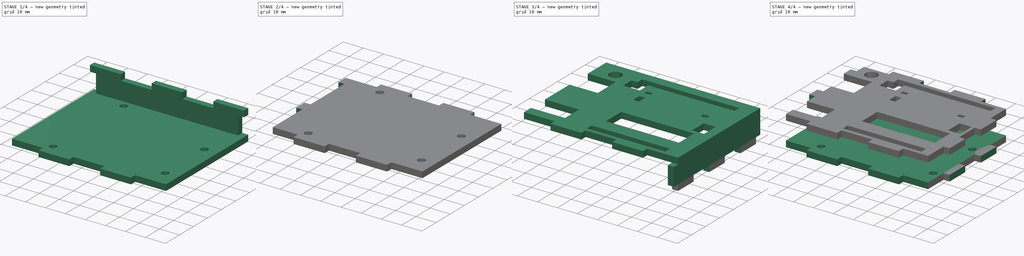
[diagram: build sequence overview — one tinted view per stage of 4, left to right]
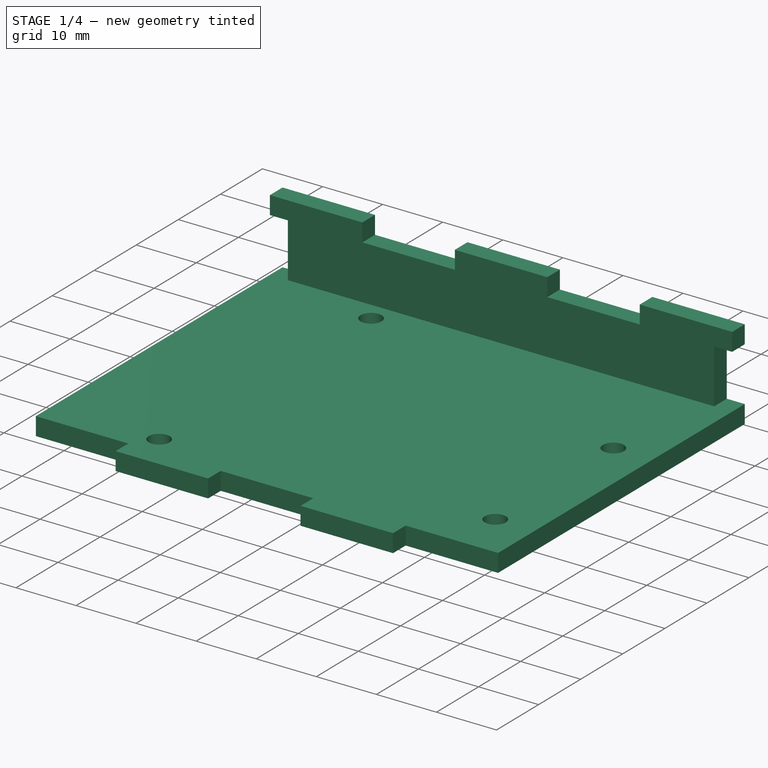
[diagram: stage 1 of 4 — iso view after this stage's code; geometry added in this stage tinted green]
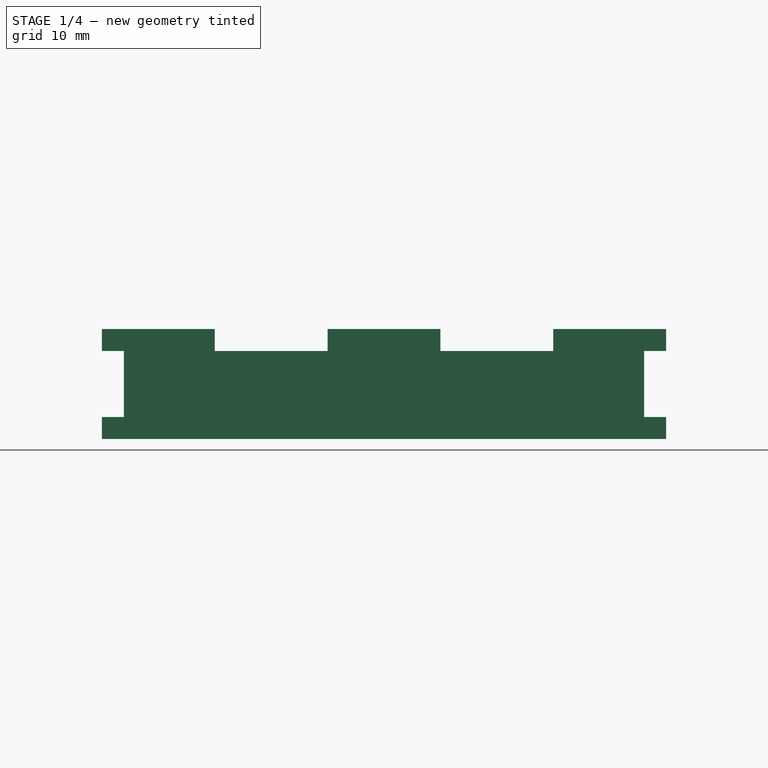
[diagram: stage 1 of 4 — front view after this stage's code; geometry added in this stage tinted green]
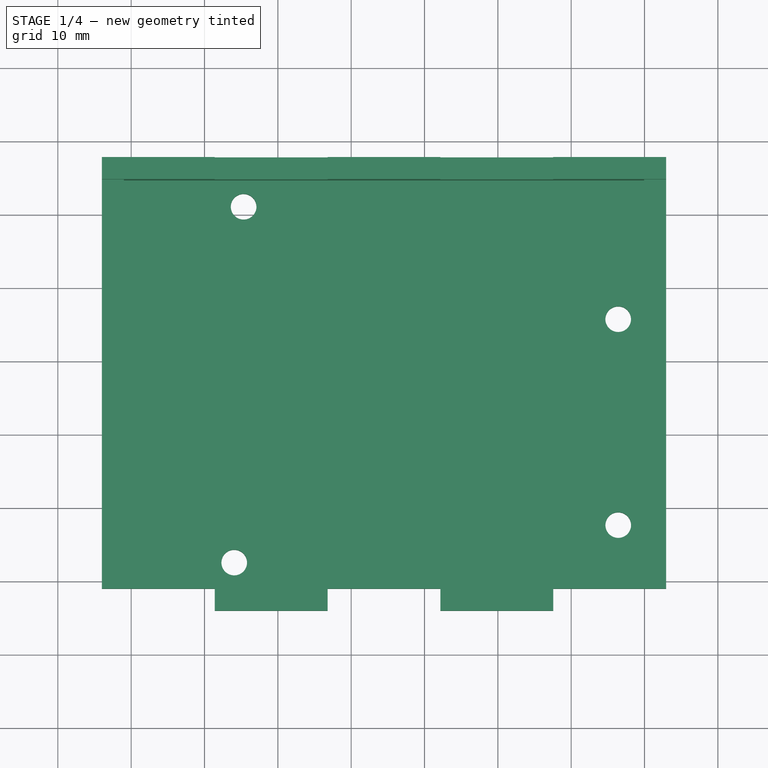
[diagram: stage 1 of 4 — top view after this stage's code; geometry added in this stage tinted green]
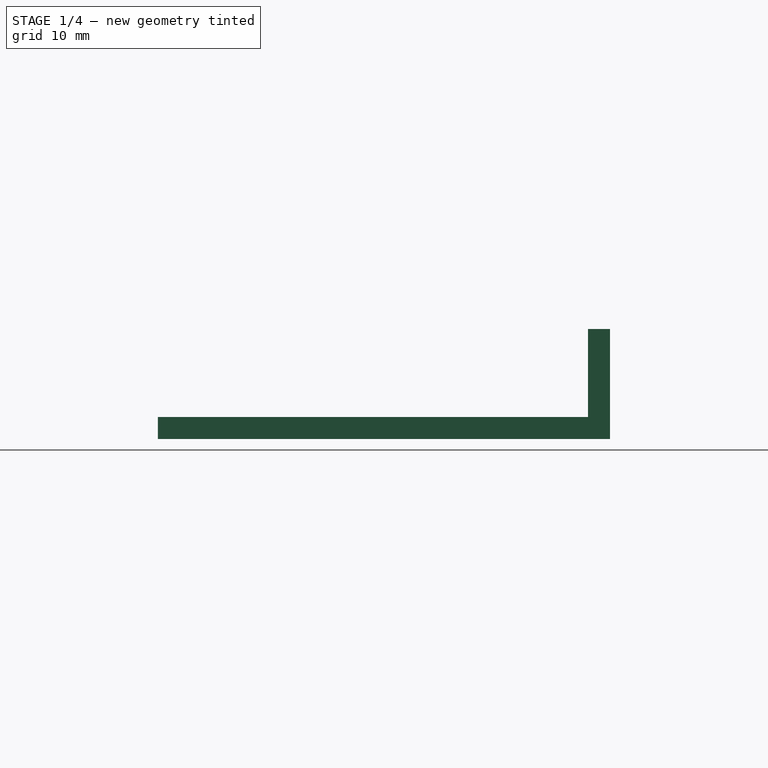
[diagram: stage 1 of 4 — right view after this stage's code; geometry added in this stage tinted green]
FCSTD DOCUMENT  (FreeCAD 0.19R)
Label: CASE-ARDUINO-CNC-01
License: Creative Commons Attribution-NonCommercial-ShareAlike
LicenseURL: http://creativecommons.org/licenses/by-nc-sa/4.0/
objects: Part::Cut×8, Sketcher::SketchObject×6, Part::Extrusion×5, Spreadsheet::Sheet×1, Part::Feature×1, Part::Mirroring×1
note: 21 computed .brp shape members not serialized (recipe doc carries the construction recipe); baked Part::Feature solids carry a one-line shape summary decoded from their .brp

FEATURE [Spreadsheet::Sheet] Spreadsheet
  cells = A1=Espessura; B1(wall)=3; A2=Folga; B2(space)=1; A3=Furo; B3(hole)=3.5; A4=Altura; B4(height)=12; A5=Conector Grande; B5(connectorA)=20; A6=Conector Pequeno; B6(connectorB)=5
FEATURE [Part::Feature] ARDUINO_3D_SCALED
  Placement = pos=(0,0,4) rot=(0,0,1;0rad)
  shape: bbox 75.35 x 53.65 x 13.2 mm, 104 faces, 0 solids (baked)
  expr: .Placement.Base.z = Spreadsheet.wall + 1
FEATURE [Sketcher::SketchObject] Sketch
  ExternalGeometry = -> [ARDUINO_3D_SCALED]
  expr: Constraints[46] = Spreadsheet.space
  expr: Constraints[55] = Spreadsheet.hole
  expr: Constraints[47] = Spreadsheet.wall
  sketch-geometry (20):
    g0: LineSegment StartX=-4 StartY=57.65 StartZ=0 EndX=72.95 EndY=57.65 EndZ=0
    g1: LineSegment StartX=72.95 StartY=57.65 StartZ=0 EndX=72.95 EndY=-4 EndZ=0
    g2: LineSegment StartX=72.95 StartY=-4 StartZ=0 EndX=-4 EndY=-4 EndZ=0
    g3: LineSegment StartX=-4 StartY=-4 StartZ=0 EndX=-4 EndY=57.65 EndZ=0
    g4: LineSegment [constr] StartX=-1 StartY=54.65 StartZ=0 EndX=69.95 EndY=54.65 EndZ=0
    g5: LineSegment [constr] StartX=69.95 StartY=54.65 StartZ=0 EndX=69.95 EndY=-1 EndZ=0
    g6: LineSegment [constr] StartX=69.95 StartY=-1 StartZ=0 EndX=-1 EndY=-1 EndZ=0
    g7: LineSegment [constr] StartX=-1 StartY=-1 StartZ=0 EndX=-1 EndY=54.65 EndZ=0
    g8: LineSegment [constr] StartX=68.95 StartY=21.575 StartZ=0 EndX=69.95 EndY=21.575 EndZ=0
    g9: LineSegment [constr] StartX=69.95 StartY=21.575 StartZ=0 EndX=72.95 EndY=21.575 EndZ=0
    g10: LineSegment [constr] StartX=32.925 StartY=53.65 StartZ=0 EndX=32.925 EndY=54.65 EndZ=0
    g11: LineSegment [constr] StartX=32.925 StartY=54.65 StartZ=0 EndX=32.925 EndY=57.65 EndZ=0
    g12: LineSegment [constr] StartX=-2e-16 StartY=26.825 StartZ=0 EndX=-1 EndY=26.825 EndZ=0
    g13: LineSegment [constr] StartX=-1 StartY=26.825 StartZ=0 EndX=-4 EndY=26.825 EndZ=0
    g14: LineSegment [constr] StartX=33.2 StartY=4e-16 StartZ=0 EndX=33.2 EndY=-1 EndZ=0
    g15: LineSegment [constr] StartX=33.2 StartY=-1 StartZ=0 EndX=33.2 EndY=-4 EndZ=0
    g16: Circle CenterX=15.3341 CenterY=51.0829 CenterZ=0 NormalX=0 NormalY=0 NormalZ=1 AngleXU=0 Radius=1.75
    g17: Circle CenterX=66.41 CenterY=35.7498 CenterZ=0 NormalX=0 NormalY=0 NormalZ=1 AngleXU=0 Radius=1.75
    g18: Circle CenterX=66.4139 CenterY=7.6684 CenterZ=0 NormalX=0 NormalY=0 NormalZ=1 AngleXU=0 Radius=1.75
    g19: Circle CenterX=14.0525 CenterY=2.55698 CenterZ=0 NormalX=0 NormalY=0 NormalZ=1 AngleXU=0 Radius=1.75
  constraints (56):
    c: Coincident(g0,g1)
    c: Coincident(g1,g2)
    c: Coincident(g2,g3)
    c: Coincident(g3,g0)
    c: Horizontal(g0)
    c: Horizontal(g2)
    c: Vertical(g1)
    c: Vertical(g3)
    c: Coincident(g4,g5)
    c: Coincident(g5,g6)
    c: Coincident(g6,g7)
    c: Coincident(g7,g4)
    c: Horizontal(g4)
    c: Horizontal(g6)
    c: Vertical(g5)
    c: Vertical(g7)
    c: PointOnObject(g8,g5)
    c: Horizontal(g8)
    c: Coincident(g8,g9)
    c: PointOnObject(g9,g1)
    c: Horizontal(g9)
    c: PointOnObject(g10,g4)
    c: Coincident(g10,g11)
    c: PointOnObject(g11,g0)
    c: Vertical(g11)
    c: Vertical(g10)
    c: PointOnObject(g12,g7)
    c: Horizontal(g12)
    c: Coincident(g12,g13)
    c: PointOnObject(g13,g3)
    c: Horizontal(g13)
    c: PointOnObject(g14,g6)
    c: Coincident(g14,g15)
    c: PointOnObject(g15,g2)
    c: Vertical(g15)
    c: Vertical(g14)
    c: Symmetric(g-6,g-6,g14)
    c: Symmetric(g-3,g-3,g8)
    c: Symmetric(g-4,g-4,g10)
    c: Symmetric(g-5,g-5,g12)
    c: Equal(g12,g10)
    c: Equal(g10,g8)
    c: Equal(g8,g14)
    c: Equal(g15,g9)
    c: Equal(g9,g11)
    c: Equal(g11,g13)
    c: DistanceY(g10,g10) = 1
    c: DistanceY(g11,g11) = 3
    c: Coincident(g16,g-8)
    c: Coincident(g17,g-7)
    c: Coincident(g18,g-9)
    c: Coincident(g19,g-10)
    c: Equal(g19,g18)
    c: Equal(g18,g17)
    c: Equal(g17,g16)
    c: Diameter(g16) = 3.5
FEATURE [Part::Extrusion] Extrude  label="BASE"
  Base = -> Sketch
  Dir = (0,0,1)
  DirMode = 2
  FaceMakerClass = Part::FaceMakerBullseye
  LengthFwd = 3
  LengthRev = 0
  Solid = true
  Symmetric = false
  expr: LengthFwd = Spreadsheet.wall
FEATURE [Sketcher::SketchObject] Sketch002
  ExternalGeometry = -> [Extrude]
  MapMode = 5
  Placement = pos=(0,-4,0) rot=(1,0,0;1.5708rad)
  Support = -> [Extrude]
  expr: Constraints[9] = Spreadsheet.height + Spreadsheet.wall
  expr: Constraints[117] = Spreadsheet.wall
  sketch-geometry (48):
    g0: LineSegment StartX=-4 StartY=15 StartZ=0 EndX=11.39 EndY=15 EndZ=0
    g1: LineSegment StartX=72.95 StartY=15 StartZ=0 EndX=72.95 EndY=12 EndZ=0
    g2: LineSegment StartX=72.95 StartY=0 StartZ=0 EndX=57.56 EndY=3.7147e-12 EndZ=0
    g3: LineSegment StartX=-4 StartY=0 StartZ=0 EndX=-4 EndY=3 EndZ=0
    g4: LineSegment StartX=11.39 StartY=12 StartZ=0 EndX=26.78 EndY=12 EndZ=0
    g5: LineSegment [constr] StartX=69.95 StartY=3 StartZ=0 EndX=57.56 EndY=3 EndZ=0
    g6: LineSegment StartX=57.56 StartY=3.7147e-12 StartZ=0 EndX=57.56 EndY=3 EndZ=0
    g7: LineSegment [constr] StartX=57.56 StartY=3 StartZ=0 EndX=57.56 EndY=12 EndZ=0
    g8: LineSegment StartX=57.56 StartY=12 StartZ=0 EndX=57.56 EndY=15 EndZ=0
    g9: LineSegment StartX=42.17 StartY=2.7874e-12 StartZ=0 EndX=42.17 EndY=3 EndZ=0
    g10: LineSegment [constr] StartX=42.17 StartY=3 StartZ=0 EndX=42.17 EndY=12 EndZ=0
    g11: LineSegment StartX=42.17 StartY=12 StartZ=0 EndX=42.17 EndY=15 EndZ=0
    g12: LineSegment StartX=26.78 StartY=1.8597e-12 StartZ=0 EndX=26.78 EndY=3 EndZ=0
    g13: LineSegment [constr] StartX=26.78 StartY=3 StartZ=0 EndX=26.78 EndY=12 EndZ=0
    g14: LineSegment StartX=26.78 StartY=12 StartZ=0 EndX=26.78 EndY=15 EndZ=0
    g15: LineSegment StartX=11.39 StartY=9.469e-13 StartZ=0 EndX=11.39 EndY=3 EndZ=0
    g16: LineSegment [constr] StartX=11.39 StartY=3 StartZ=0 EndX=11.39 EndY=12 EndZ=0
    g17: LineSegment StartX=11.39 StartY=12 StartZ=0 EndX=11.39 EndY=15 EndZ=0
    g18: LineSegment StartX=57.56 StartY=15 StartZ=0 EndX=72.95 EndY=15 EndZ=0
    g19: LineSegment StartX=42.17 StartY=12 StartZ=0 EndX=57.56 EndY=12 EndZ=0
    g20: LineSegment StartX=26.78 StartY=15 StartZ=0 EndX=42.17 EndY=15 EndZ=0
    g21: LineSegment StartX=42.17 StartY=2.7874e-12 StartZ=0 EndX=26.78 EndY=1.8597e-12 EndZ=0
    g22: LineSegment StartX=11.39 StartY=9.277e-13 StartZ=0 EndX=-4 EndY=0 EndZ=0
    g23: LineSegment [constr] StartX=11.39 StartY=3 StartZ=0 EndX=-1 EndY=3 EndZ=0
    g24: LineSegment [constr] StartX=42.17 StartY=3 StartZ=0 EndX=26.78 EndY=3 EndZ=0
    g25: LineSegment [constr] StartX=11.39 StartY=15 StartZ=0 EndX=26.78 EndY=15 EndZ=0
    g26: LineSegment [constr] StartX=42.17 StartY=15 StartZ=0 EndX=57.56 EndY=15 EndZ=0
    g27: LineSegment [constr] StartX=57.56 StartY=12 StartZ=0 EndX=69.95 EndY=12 EndZ=0
    g28: LineSegment [constr] StartX=57.56 StartY=3.7147e-12 StartZ=0 EndX=42.17 EndY=2.7874e-12 EndZ=0
    g29: LineSegment StartX=11.39 StartY=3 StartZ=0 EndX=26.78 EndY=3 EndZ=0
    g30: LineSegment [constr] StartX=11.39 StartY=12 StartZ=0 EndX=-1 EndY=12 EndZ=0
    g31: LineSegment [constr] StartX=26.78 StartY=12 StartZ=0 EndX=42.17 EndY=12 EndZ=0
    g32: LineSegment StartX=42.17 StartY=3 StartZ=0 EndX=57.56 EndY=3 EndZ=0
    g33: LineSegment StartX=72.95 StartY=3 StartZ=0 EndX=72.95 EndY=0 EndZ=0
    g34: LineSegment StartX=-4 StartY=12 StartZ=0 EndX=-4 EndY=15 EndZ=0
    g35: LineSegment [constr] StartX=-4 StartY=12 StartZ=0 EndX=-4 EndY=3 EndZ=0
    g36: LineSegment [constr] StartX=-1 StartY=15 StartZ=0 EndX=-1 EndY=12 EndZ=0
    g37: LineSegment StartX=-1 StartY=12 StartZ=0 EndX=-1 EndY=3 EndZ=0
    g38: LineSegment [constr] StartX=-1 StartY=3 StartZ=0 EndX=-1 EndY=2.358e-13 EndZ=0
    g39: LineSegment StartX=-4 StartY=12 StartZ=0 EndX=-1 EndY=12 EndZ=0
    g40: LineSegment StartX=-4 StartY=3 StartZ=0 EndX=-1 EndY=3 EndZ=0
    g41: LineSegment [constr] StartX=-4 StartY=3 StartZ=0 EndX=-1 EndY=3 EndZ=0
    g42: LineSegment [constr] StartX=69.95 StartY=15 StartZ=0 EndX=69.95 EndY=12 EndZ=0
    g43: LineSegment StartX=69.95 StartY=12 StartZ=0 EndX=69.95 EndY=3 EndZ=0
    g44: LineSegment [constr] StartX=69.95 StartY=3 StartZ=0 EndX=69.95 EndY=9e-16 EndZ=0
    g45: LineSegment [constr] StartX=72.95 StartY=12 StartZ=0 EndX=72.95 EndY=3 EndZ=0
    g46: LineSegment StartX=72.95 StartY=12 StartZ=0 EndX=69.95 EndY=12 EndZ=0
    g47: LineSegment StartX=72.95 StartY=3 StartZ=0 EndX=69.95 EndY=3 EndZ=0
  constraints (118):
    c: Coincident(g18,g1)
    c: Coincident(g33,g2)
    c: Coincident(g22,g3)
    c: Coincident(g34,g0)
    c: Horizontal(g0)
    c: Vertical(g1)
    c: Vertical(g3)
    c: Coincident(g22,g-3)
    c: Coincident(g33,g-3)
    c: DistanceY(g33,g1) = 15
    c: Horizontal(g4)
    c: Horizontal(g5)
    c: Vertical(g6)
    c: Vertical(g7)
    c: Vertical(g8)
    c: Vertical(g10)
    c: Vertical(g11)
    c: Vertical(g12)
    c: Vertical(g13)
    c: Vertical(g14)
    c: PointOnObject(g15,g2)
    c: Vertical(g16)
    c: Vertical(g17)
    c: Coincident(g20,g11)
    c: Coincident(g18,g8)
    c: Tangent(g0,g18)
    c: Coincident(g19,g7)
    c: Coincident(g4,g13)
    c: Coincident(g19,g10)
    c: Tangent(g4,g19)
    c: Coincident(g0,g17)
    c: Coincident(g20,g14)
    c: Tangent(g0,g20)
    c: Coincident(g4,g16)
    c: Coincident(g2,g6)
    c: Coincident(g21,g9)
    c: Tangent(g2,g21)
    c: PointOnObject(g22,g15)
    c: Tangent(g21,g22)
    c: Coincident(g24,g12)
    c: Coincident(g23,g15)
    c: Tangent(g5,g23)
    c: Coincident(g5,g6)
    c: Coincident(g24,g9)
    c: Tangent(g5,g24)
    c: Coincident(g25,g0)
    c: Coincident(g25,g20)
    c: Coincident(g26,g20)
    c: Coincident(g26,g18)
    c: Coincident(g27,g19)
    c: Horizontal(g27)
    c: Coincident(g28,g2)
    c: Coincident(g28,g21)
    c: Vertical(g9)
    c: Coincident(g29,g23)
    c: Coincident(g29,g24)
    c: Vertical(g15)
    c: Coincident(g15,g16)
    c: Coincident(g4,g17)
    c: Coincident(g30,g4)
    c: Horizontal(g30)
    c: Coincident(g31,g4)
    c: Coincident(g31,g19)
    c: Coincident(g32,g24)
    c: Coincident(g32,g5)
    c: Coincident(g12,g13)
    c: Coincident(g12,g21)
    c: Coincident(g4,g14)
    c: Coincident(g10,g11)
    c: Coincident(g9,g10)
    c: Coincident(g5,g7)
    c: Coincident(g7,g8)
    c: Tangent(g1,g33)
    c: Tangent(g3,g34)
    c: Coincident(g35,g34)
    c: Coincident(g35,g3)
    c: PointOnObject(g36,g0)
    c: Vertical(g36)
    c: Vertical(g37)
    c: Coincident(g37,g38)
    c: PointOnObject(g38,g22)
    c: Vertical(g38)
    c: Coincident(g30,g36)
    c: Coincident(g39,g34)
    c: Coincident(g39,g30)
    c: Horizontal(g39)
    c: Coincident(g40,g3)
    c: Coincident(g40,g37)
    c: Coincident(g41,g3)
    c: Coincident(g41,g23)
    c: PointOnObject(g42,g18)
    c: Vertical(g42)
    c: Vertical(g43)
    c: PointOnObject(g44,g2)
    c: Vertical(g44)
    c: Coincident(g45,g1)
    c: Coincident(g45,g33)
    c: Coincident(g27,g42)
    c: Coincident(g5,g43)
    c: Coincident(g46,g1)
    c: Coincident(g46,g27)
    c: Horizontal(g46)
    c: Coincident(g47,g33)
    c: Coincident(g47,g5)
    c: Equal(g1,g47)
    c: Equal(g47,g33)
    c: Equal(g33,g40)
    c: Horizontal(g40)
    c: Coincident(g23,g37)
    c: Coincident(g30,g37)
    c: Horizontal(g47)
    c: Coincident(g5,g44)
    c: Coincident(g27,g43)
    c: Equal(g0,g25)
    c: Equal(g25,g20)
    c: Equal(g20,g26)
    c: Equal(g26,g18)
    c: DistanceY(g1,g1) = 3
FEATURE [Part::Extrusion] Extrude002  label="Face Longitudinal"
  Base = -> Sketch002
  Dir = (0,-1,2e-16)
  DirMode = 2
  FaceMakerClass = Part::FaceMakerBullseye
  LengthFwd = 3
  LengthRev = 0
  Reversed = true
  Solid = true
  Symmetric = false
  expr: LengthFwd = Spreadsheet.wall
FEATURE [Part::Mirroring] mirror  label="Face Longitudinal (mirrored)"
  Base = (71.95,26.825,12.5)
  Normal = (-1e-16,1,0)
  Source = -> Extrude002
FEATURE [Part::Cut] Cut002
  Base = -> Extrude
  Refine = true
  Tool = -> Extrude002
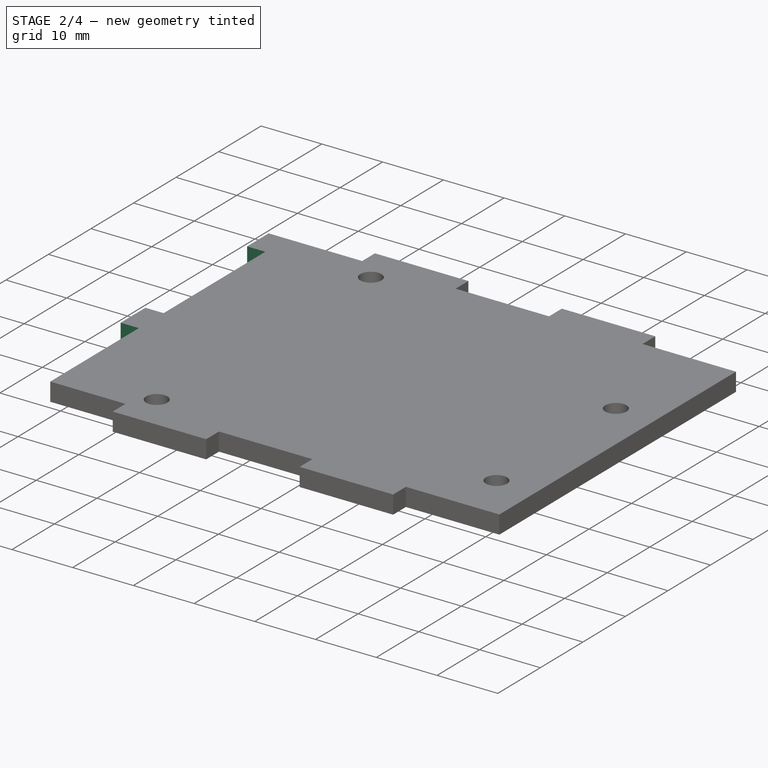
[diagram: stage 2 of 4 — iso view after this stage's code; geometry added in this stage tinted green]
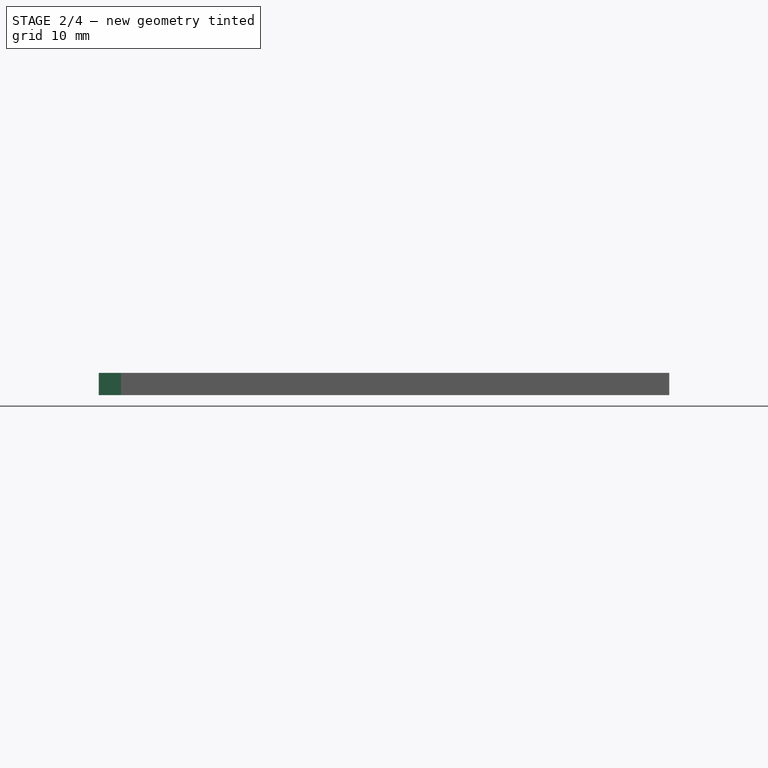
[diagram: stage 2 of 4 — front view after this stage's code; geometry added in this stage tinted green]
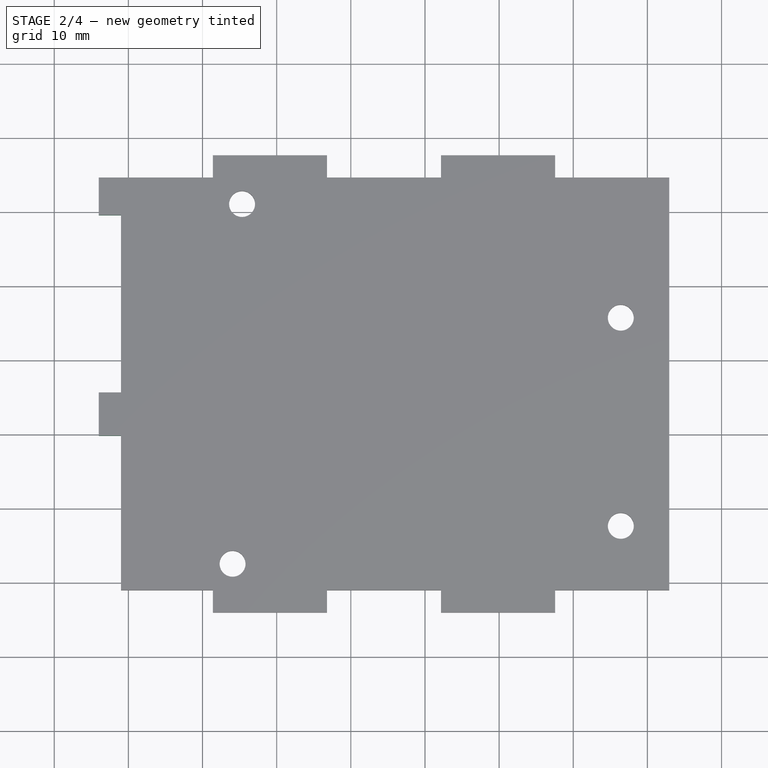
[diagram: stage 2 of 4 — top view after this stage's code; geometry added in this stage tinted green]
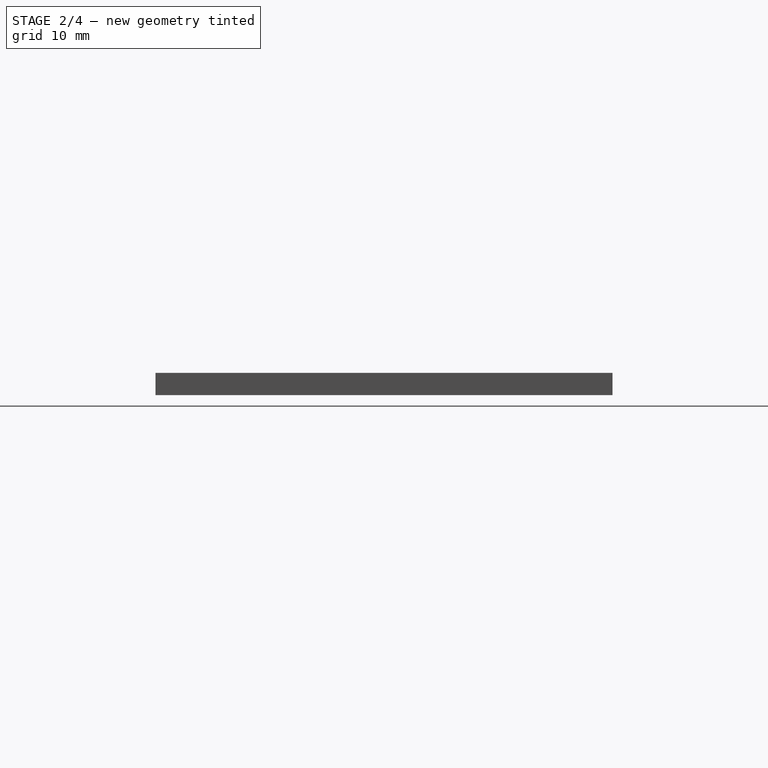
[diagram: stage 2 of 4 — right view after this stage's code; geometry added in this stage tinted green]
FEATURE [Part::Cut] Cut003
  Base = -> Cut002
  Refine = true
  Tool = -> mirror
FEATURE [Sketcher::SketchObject] Sketch003
  ExternalGeometry = -> [Cut003,ARDUINO_3D_SCALED]
  MapMode = 5
  Placement = pos=(-4,0,0) rot=(0.57735,-0.57735,-0.57735;2.0944rad)
  Support = -> [Cut003]
  expr: Constraints[62] = Spreadsheet.height + Spreadsheet.wall
  expr: Constraints[0] = Spreadsheet.wall
  expr: Constraints[50] = Spreadsheet.space / 2
  sketch-geometry (81):
    g0: LineSegment StartX=-54.65 StartY=15 StartZ=0 EndX=-54.65 EndY=12 EndZ=0
    g1: LineSegment StartX=-54.65 StartY=12 StartZ=0 EndX=-57.65 EndY=12 EndZ=0
    g2: LineSegment [constr] StartX=-44.5 StartY=12 StartZ=0 EndX=-31.5 EndY=12 EndZ=0
    g3: LineSegment [constr] StartX=-14 StartY=12 StartZ=0 EndX=-4 EndY=12 EndZ=0
    g4: LineSegment [constr] StartX=-31.5 StartY=3 StartZ=0 EndX=-44.5 EndY=3 EndZ=0
    g5: LineSegment [constr] StartX=-54.65 StartY=3 StartZ=0 EndX=-54.65 EndY=12 EndZ=0
    g6: LineSegment [constr] StartX=-54.65 StartY=3 StartZ=0 EndX=-54.65 EndY=0 EndZ=0
    g7: LineSegment [constr] StartX=-14 StartY=3 StartZ=0 EndX=-14 EndY=0 EndZ=0
    g8: LineSegment [constr] StartX=-4 StartY=3 StartZ=0 EndX=-4 EndY=0 EndZ=0
    g9: LineSegment [constr] StartX=4 StartY=12 StartZ=0 EndX=4 EndY=15 EndZ=0
    g10: LineSegment [constr] StartX=-4 StartY=15 StartZ=0 EndX=-14 EndY=15 EndZ=0
    g11: LineSegment [constr] StartX=-31.5 StartY=15 StartZ=0 EndX=-44.5 EndY=15 EndZ=0
    g12: LineSegment [constr] StartX=-54.65 StartY=15 StartZ=0 EndX=-57.65 EndY=15 EndZ=0
    g13: LineSegment [constr] StartX=-57.65 StartY=0 StartZ=0 EndX=-54.65 EndY=0 EndZ=0
    g14: LineSegment [constr] StartX=1 StartY=0 StartZ=0 EndX=4 EndY=0 EndZ=0
    g15: LineSegment [constr] StartX=4 StartY=0 StartZ=0 EndX=4 EndY=3 EndZ=0
    g16: LineSegment StartX=4 StartY=3 StartZ=0 EndX=4 EndY=12 EndZ=0
    g17: LineSegment [constr] StartX=-4 StartY=3 StartZ=0 EndX=1 EndY=3 EndZ=0
    g18: LineSegment StartX=1 StartY=3 StartZ=0 EndX=4 EndY=3 EndZ=0
    g19: LineSegment StartX=4 StartY=12 StartZ=0 EndX=1 EndY=12 EndZ=0
    g20: LineSegment [constr] StartX=1 StartY=12 StartZ=0 EndX=-4 EndY=12 EndZ=0
    g21: LineSegment [constr] StartX=1 StartY=15 StartZ=0 EndX=4 EndY=15 EndZ=0
    g22: LineSegment [constr] StartX=1 StartY=12 StartZ=0 EndX=1 EndY=3 EndZ=0
    g23: LineSegment StartX=1 StartY=3 StartZ=0 EndX=1 EndY=0 EndZ=0
    g24: LineSegment [constr] StartX=-31.5 StartY=15 StartZ=0 EndX=-31.5 EndY=17.2 EndZ=0
    g25: LineSegment [constr] StartX=-31.5 StartY=17.2 StartZ=0 EndX=-32 EndY=17.2 EndZ=0
    g26: LineSegment [constr] StartX=-44.5 StartY=15 StartZ=0 EndX=-44.5 EndY=17.2 EndZ=0
    g27: LineSegment [constr] StartX=-44.5 StartY=17.2 StartZ=0 EndX=-44 EndY=17.2 EndZ=0
    g28: LineSegment [constr] StartX=-4 StartY=15 StartZ=0 EndX=-4 EndY=16.5 EndZ=0
    g29: LineSegment [constr] StartX=-4 StartY=16.5 StartZ=0 EndX=-4.5 EndY=16.5 EndZ=0
    g30: LineSegment [constr] StartX=-14 StartY=15 StartZ=0 EndX=-14 EndY=16.5 EndZ=0
    g31: LineSegment [constr] StartX=-14 StartY=16.5 StartZ=0 EndX=-13.5 EndY=16.5 EndZ=0
    g32: LineSegment StartX=-31.5 StartY=15 StartZ=0 EndX=-25.6667 EndY=15 EndZ=0
    g33: LineSegment [constr] StartX=-25.6667 StartY=15 StartZ=0 EndX=-19.8333 EndY=15 EndZ=0
    g34: LineSegment StartX=-19.8333 StartY=15 StartZ=0 EndX=-14 EndY=15 EndZ=0
    g35: LineSegment [constr] StartX=-14 StartY=12 StartZ=0 EndX=-19.8333 EndY=12 EndZ=0
    g36: LineSegment StartX=-19.8333 StartY=12 StartZ=0 EndX=-25.6667 EndY=12 EndZ=0
    g37: LineSegment [constr] StartX=-25.6667 StartY=12 StartZ=0 EndX=-31.5 EndY=12 EndZ=0
    g38: LineSegment [constr] StartX=-14 StartY=3 StartZ=0 EndX=-19.8333 EndY=3 EndZ=0
    g39: LineSegment StartX=-19.8333 StartY=3 StartZ=0 EndX=-25.6667 EndY=3 EndZ=0
    g40: LineSegment [constr] StartX=-25.6667 StartY=3 StartZ=0 EndX=-31.5 EndY=3 EndZ=0
    g41: LineSegment [constr] StartX=-25.6667 StartY=0 StartZ=0 EndX=-19.8333 EndY=0 EndZ=0
    g42: LineSegment StartX=-19.8333 StartY=15 StartZ=0 EndX=-19.8333 EndY=12 EndZ=0
    g43: LineSegment [constr] StartX=-19.8333 StartY=12 StartZ=0 EndX=-19.8333 EndY=3 EndZ=0
    g44: LineSegment StartX=-19.8333 StartY=3 StartZ=0 EndX=-19.8333 EndY=0 EndZ=0
    g45: LineSegment StartX=-25.6667 StartY=0 StartZ=0 EndX=-25.6667 EndY=3 EndZ=0
    g46: LineSegment [constr] StartX=-25.6667 StartY=3 StartZ=0 EndX=-25.6667 EndY=12 EndZ=0
    g47: LineSegment StartX=-25.6667 StartY=12 StartZ=0 EndX=-25.6667 EndY=15 EndZ=0
    g48: LineSegment StartX=-54.65 StartY=15 StartZ=0 EndX=-49.575 EndY=15 EndZ=0
    g49: LineSegment [constr] StartX=-49.575 StartY=15 StartZ=0 EndX=-44.5 EndY=15 EndZ=0
    g50: LineSegment StartX=-44.5 StartY=12 StartZ=0 EndX=-49.575 EndY=12 EndZ=0
    g51: LineSegment [constr] StartX=-49.575 StartY=12 StartZ=0 EndX=-54.65 EndY=12 EndZ=0
    g52: LineSegment [constr] StartX=-49.575 StartY=3 StartZ=0 EndX=-44.5 EndY=3 EndZ=0
    g53: LineSegment [constr] StartX=-49.575 StartY=0 StartZ=0 EndX=-54.65 EndY=0 EndZ=0
    g54: LineSegment StartX=-49.575 StartY=0 StartZ=0 EndX=-49.575 EndY=3 EndZ=0
    g55: LineSegment [constr] StartX=-49.575 StartY=3 StartZ=0 EndX=-49.575 EndY=12 EndZ=0
    g56: LineSegment StartX=-49.575 StartY=12 StartZ=0 EndX=-49.575 EndY=15 EndZ=0
    g57: LineSegment [constr] StartX=-57.65 StartY=15 StartZ=0 EndX=-57.65 EndY=12 EndZ=0
    g58: LineSegment StartX=-57.65 StartY=12 StartZ=0 EndX=-57.65 EndY=3 EndZ=0
    g59: LineSegment [constr] StartX=-57.65 StartY=3 StartZ=0 EndX=-57.65 EndY=0 EndZ=0
    g60: LineSegment StartX=1 StartY=12 StartZ=0 EndX=1 EndY=15 EndZ=0
    g61: LineSegment StartX=1 StartY=15 StartZ=0 EndX=-4 EndY=15 EndZ=0
    g62: LineSegment StartX=-44.5 StartY=5 StartZ=0 EndX=-31.5 EndY=5 EndZ=0
    g63: LineSegment StartX=-14 StartY=15 StartZ=0 EndX=-14 EndY=5 EndZ=0
    g64: LineSegment StartX=-14 StartY=5 StartZ=0 EndX=-4 EndY=5 EndZ=0
    g65: LineSegment StartX=-4 StartY=5 StartZ=0 EndX=-4 EndY=15 EndZ=0
    g66: LineSegment StartX=1 StartY=0 StartZ=0 EndX=-19.8333 EndY=0 EndZ=0
    g67: LineSegment [constr] StartX=-4 StartY=3 StartZ=0 EndX=-14 EndY=3 EndZ=0
    g68: LineSegment [constr] StartX=-4 StartY=5 StartZ=0 EndX=-4 EndY=3 EndZ=0
    g69: LineSegment StartX=-49.575 StartY=0 StartZ=0 EndX=-25.6667 EndY=0 EndZ=0
    g70: LineSegment StartX=-31.5 StartY=15 StartZ=0 EndX=-31.5 EndY=5 EndZ=0
    g71: LineSegment [constr] StartX=-44.5 StartY=5 StartZ=0 EndX=-44.5 EndY=3 EndZ=0
    g72: LineSegment [constr] StartX=-44.5 StartY=3 StartZ=0 EndX=-44.5 EndY=0 EndZ=0
    g73: LineSegment [constr] StartX=-31.5 StartY=5 StartZ=0 EndX=-31.5 EndY=3 EndZ=0
    g74: LineSegment [constr] StartX=-31.5 StartY=3 StartZ=0 EndX=-31.5 EndY=0 EndZ=0
    g75: LineSegment StartX=-57.65 StartY=3 StartZ=0 EndX=-49.575 EndY=3 EndZ=0
    g76: LineSegment [constr] StartX=-44.5 StartY=15 StartZ=0 EndX=-44.5 EndY=12 EndZ=0
    g77: LineSegment StartX=-44.5 StartY=12 StartZ=0 EndX=-44.5 EndY=5 EndZ=0
    g78: LineSegment [constr] StartX=-14 StartY=5 StartZ=0 EndX=-14 EndY=3 EndZ=0
    g79: LineSegment [constr] StartX=-4.5 StartY=5.5 StartZ=0 EndX=-4.5 EndY=5 EndZ=0
    g80: LineSegment [constr] StartX=-44 StartY=5.5 StartZ=0 EndX=-44 EndY=5 EndZ=0
  constraints (214):
    c: DistanceX(g13,g-3) = 3
    c: Vertical(g0)
    c: Coincident(g0,g1)
    c: Horizontal(g1)
    c: Horizontal(g2)
    c: Horizontal(g3)
    c: Horizontal(g4)
    c: Coincident(g5,g0)
    c: Vertical(g5)
    c: Coincident(g6,g-3)
    c: Vertical(g6)
    c: Vertical(g7)
    c: Vertical(g8)
    c: Vertical(g9)
    c: Horizontal(g10)
    c: Horizontal(g11)
    c: Horizontal(g12)
    c: Coincident(g13,g6)
    c: Horizontal(g13)
    c: PointOnObject(g14,g-1)
    c: Coincident(g14,g15)
    c: Vertical(g15)
    c: Coincident(g15,g16)
    c: Vertical(g16)
    c: Horizontal(g17)
    c: Coincident(g17,g18)
    c: Coincident(g18,g15)
    c: Horizontal(g18)
    c: Coincident(g9,g19)
    c: Horizontal(g19)
    c: Coincident(g19,g20)
    c: Horizontal(g20)
    c: Coincident(g21,g9)
    c: Horizontal(g21)
    c: Coincident(g22,g17)
    c: Vertical(g22)
    c: Coincident(g22,g23)
    c: Vertical(g23)
    c: Equal(g14,g15)
    c: Equal(g15,g9)
    c: Equal(g9,g12)
    c: Vertical(g24)
    c: Coincident(g24,g25)
    c: Coincident(g25,g-6)
    c: Horizontal(g25)
    c: Vertical(g26)
    c: Coincident(g26,g27)
    c: Coincident(g27,g-7)
    c: Horizontal(g27)
    c: Equal(g27,g25)
    c: DistanceX(g27,g27) = 0.5
    c: Coincident(g9,g16)
    c: Vertical(g28)
    c: Coincident(g28,g29)
    c: Coincident(g29,g-4)
    c: Horizontal(g29)
    c: Vertical(g30)
    c: Coincident(g30,g31)
    c: Coincident(g31,g-5)
    c: Horizontal(g31)
    c: Equal(g29,g31)
    c: Equal(g31,g25)
    c: DistanceY(g14,g9) = 15
    c: Horizontal(g32)
    c: Coincident(g32,g33)
    c: Horizontal(g33)
    c: Coincident(g33,g34)
    c: Horizontal(g34)
    c: Horizontal(g35)
    c: Coincident(g35,g36)
    c: Horizontal(g36)
    c: Coincident(g36,g37)
    c: Coincident(g37,g2)
    c: Horizontal(g37)
    c: Coincident(g38,g39)
    c: Horizontal(g39)
    c: Coincident(g39,g40)
    c: Horizontal(g40)
    c: PointOnObject(g41,g-3)
    c: Horizontal(g41)
    c: Coincident(g33,g42)
    c: Coincident(g42,g35)
    c: Coincident(g42,g43)
    c: Coincident(g43,g38)
    c: Vertical(g43)
    c: Coincident(g43,g44)
    c: Coincident(g44,g41)
    c: Coincident(g45,g39)
    c: Coincident(g45,g46)
    c: Coincident(g46,g36)
    c: Coincident(g46,g47)
    c: Coincident(g47,g32)
    c: Vertical(g47)
    c: Vertical(g42)
    c: Vertical(g46)
    c: Vertical(g45)
    c: Vertical(g44)
    c: Equal(g32,g33)
    c: Equal(g33,g34)
    c: Coincident(g12,g48)
    c: Horizontal(g48)
    c: Horizontal(g49)
    c: Horizontal(g50)
    c: Coincident(g51,g0)
    c: Horizontal(g51)
    c: Coincident(g0,g12)
    c: Coincident(g52,g4)
    c: Horizontal(g52)
    c: PointOnObject(g53,g-3)
    c: Coincident(g53,g6)
    c: Coincident(g54,g55)
    c: Coincident(g55,g50)
    c: Vertical(g55)
    c: Coincident(g55,g56)
    c: Vertical(g56)
    c: Vertical(g54)
    c: Coincident(g12,g57)
    c: Vertical(g57)
    c: Coincident(g57,g58)
    c: Vertical(g58)
    c: Coincident(g58,g59)
    c: Coincident(g59,g13)
    c: Vertical(g59)
    c: Coincident(g1,g57)
    c: Equal(g57,g59)
    c: Equal(g59,g14)
    c: Coincident(g19,g60)
    c: Coincident(g60,g21)
    c: Vertical(g60)
    c: Coincident(g60,g61)
    c: Coincident(g61,g28)
    c: Coincident(g10,g28)
    c: Coincident(g19,g22)
    c: Horizontal(g62)
    c: Coincident(g4,g40)
    c: Coincident(g34,g10)
    c: Coincident(g10,g30)
    c: Coincident(g3,g35)
    c: Coincident(g3,g20)
    c: Coincident(g34,g63)
    c: Vertical(g63)
    c: Coincident(g63,g64)
    c: Horizontal(g64)
    c: Coincident(g64,g65)
    c: Coincident(g65,g61)
    c: Vertical(g65)
    c: PointOnObject(g3,g65)
    c: PointOnObject(g3,g63)
    c: Coincident(g7,g38)
    c: Horizontal(g38)
    c: Coincident(g66,g23)
    c: Coincident(g66,g44)
    c: Coincident(g67,g8)
    c: Coincident(g67,g7)
    c: Coincident(g8,g17)
    c: Coincident(g68,g64)
    c: Coincident(g68,g8)
    c: Equal(g48,g49)
    c: PointOnObject(g7,g66)
    c: PointOnObject(g8,g66)
    c: Coincident(g14,g23)
    c: Coincident(g14,g-3)
    c: Vertical(g68)
    c: Coincident(g5,g6)
    c: Coincident(g69,g54)
    c: Coincident(g69,g45)
    c: Coincident(g70,g32)
    c: Coincident(g70,g62)
    c: Vertical(g70)
    c: Coincident(g62,g71)
    c: Coincident(g71,g4)
    c: Vertical(g71)
    c: Coincident(g71,g72)
    c: PointOnObject(g72,g69)
    c: Vertical(g72)
    c: Coincident(g62,g73)
    c: Coincident(g73,g4)
    c: Vertical(g73)
    c: Coincident(g73,g74)
    c: PointOnObject(g74,g69)
    c: Vertical(g74)
    c: Coincident(g53,g54)
    c: Coincident(g50,g51)
    c: Coincident(g48,g49)
    c: Coincident(g48,g56)
    c: Coincident(g11,g26)
    c: Coincident(g11,g49)
    c: Coincident(g75,g58)
    c: Coincident(g75,g54)
    c: Horizontal(g75)
    c: PointOnObject(g5,g75)
    c: Coincident(g52,g54)
    c: Coincident(g11,g24)
    c: Coincident(g11,g32)
    c: Coincident(g11,g76)
    c: Coincident(g76,g2)
    c: Vertical(g76)
    c: Coincident(g76,g77)
    c: Coincident(g77,g62)
    c: Vertical(g77)
    c: Coincident(g2,g50)
    c: Coincident(g41,g45)
    c: PointOnObject(g2,g70)
    c: Coincident(g78,g63)
    c: Coincident(g78,g7)
    c: Vertical(g78)
    c: Coincident(g79,g-4)
    c: PointOnObject(g79,g64)
    c: Vertical(g79)
    c: Equal(g79,g27)
    c: Coincident(g80,g-7)
    c: PointOnObject(g80,g62)
    c: Vertical(g80)
    c: Equal(g80,g27)
FEATURE [Part::Extrusion] Extrude003  label="Frontal"
  Base = -> Sketch003
  Dir = (-1,0,0)
  DirMode = 2
  FaceMakerClass = Part::FaceMakerBullseye
  LengthFwd = 3
  LengthRev = 0
  Reversed = true
  Solid = true
  Symmetric = false
  expr: LengthFwd = Spreadsheet.wall
FEATURE [Part::Cut] Cut005  label="BASE001"
  Base = -> Cut003
  Refine = true
  Tool = -> Extrude003
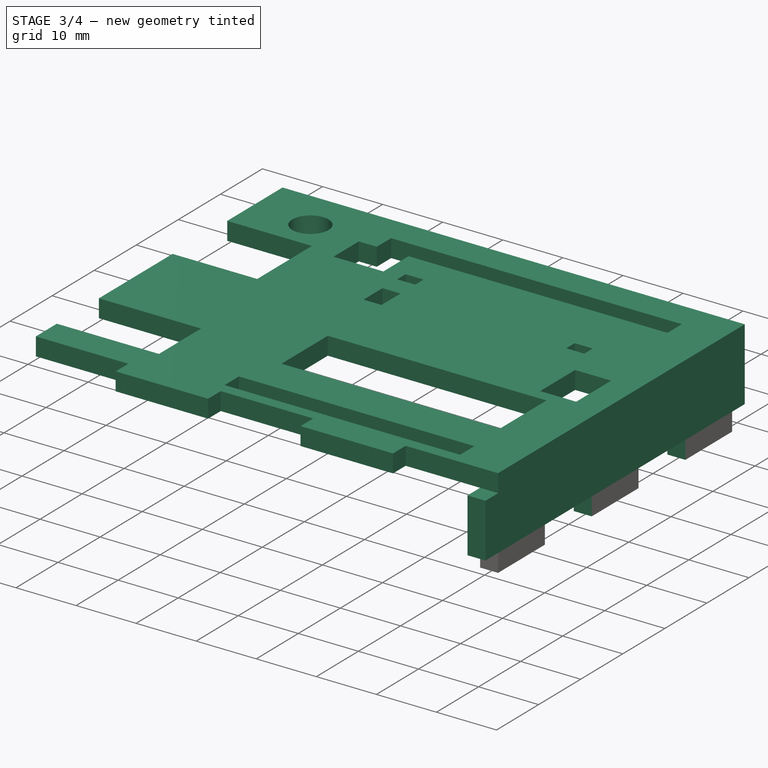
[diagram: stage 3 of 4 — iso view after this stage's code; geometry added in this stage tinted green]
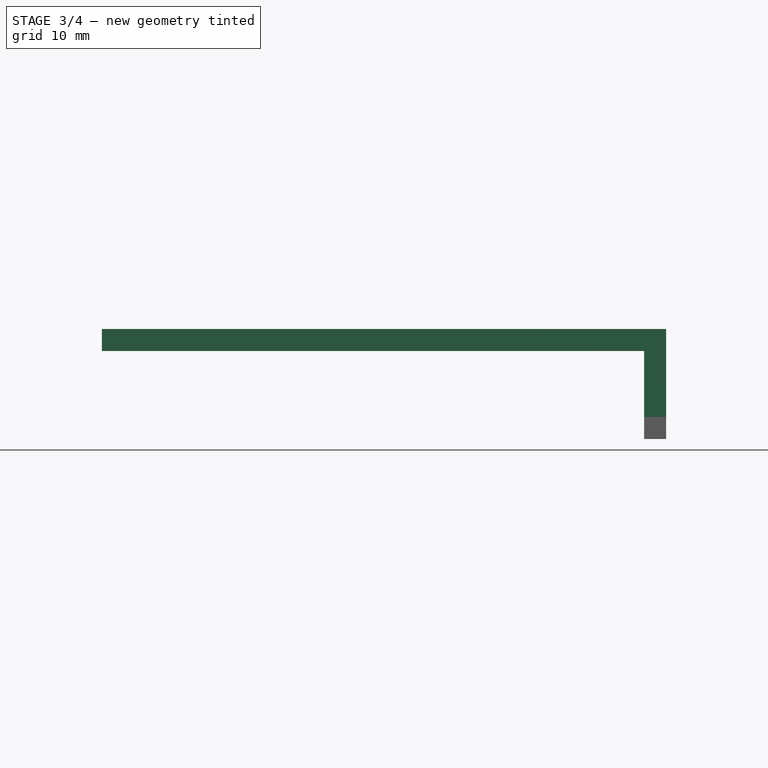
[diagram: stage 3 of 4 — front view after this stage's code; geometry added in this stage tinted green]
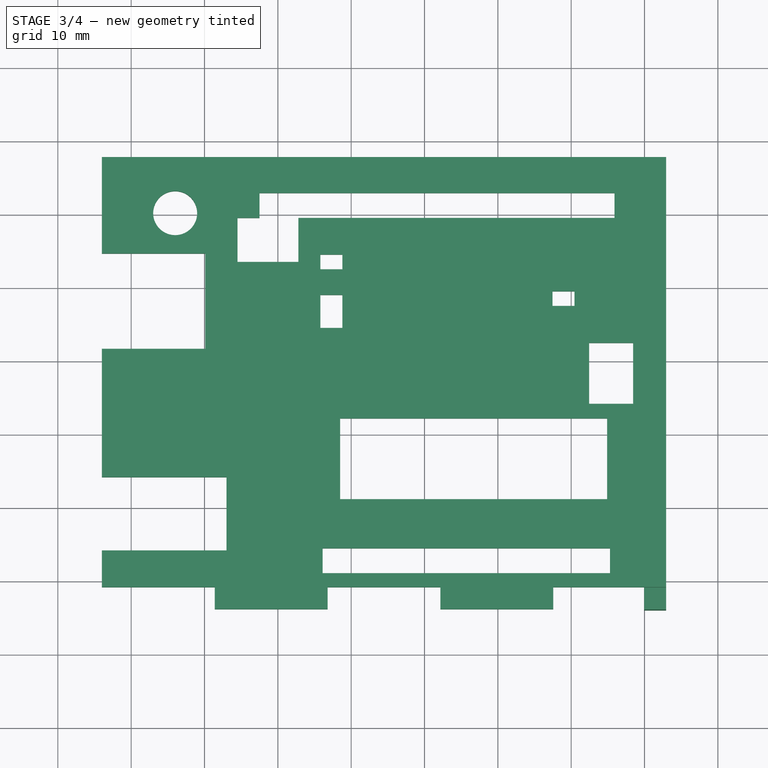
[diagram: stage 3 of 4 — top view after this stage's code; geometry added in this stage tinted green]
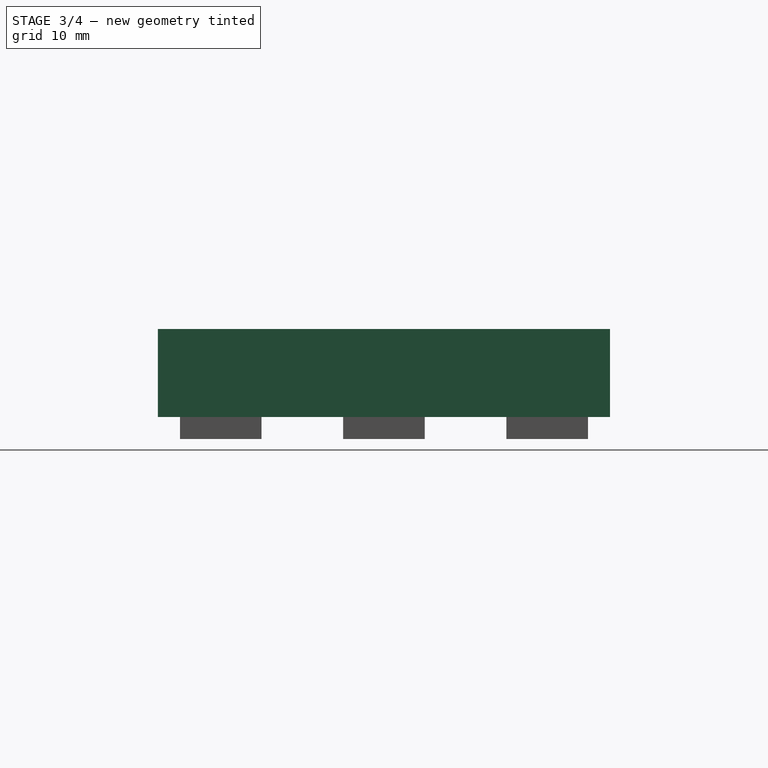
[diagram: stage 3 of 4 — right view after this stage's code; geometry added in this stage tinted green]
FEATURE [Sketcher::SketchObject] Sketch001
  ExternalGeometry = -> [ARDUINO_3D_SCALED]
  expr: Constraints[46] = Sketch.Constraints[46]
  expr: Constraints[47] = Sketch.Constraints[47]
  expr: Constraints[276] = Spreadsheet.space / 2
  sketch-geometry (99):
    g0: LineSegment StartX=-4 StartY=57.65 StartZ=0 EndX=72.95 EndY=57.65 EndZ=0
    g1: LineSegment StartX=72.95 StartY=57.65 StartZ=0 EndX=72.95 EndY=-4 EndZ=0
    g2: LineSegment StartX=72.95 StartY=-4 StartZ=0 EndX=-4 EndY=-4 EndZ=0
    g3: LineSegment StartX=-4 StartY=-4 StartZ=0 EndX=-4 EndY=4 EndZ=0
    g4: LineSegment [constr] StartX=-1 StartY=54.65 StartZ=0 EndX=69.95 EndY=54.65 EndZ=0
    g5: LineSegment [constr] StartX=69.95 StartY=54.65 StartZ=0 EndX=69.95 EndY=-1 EndZ=0
    g6: LineSegment [constr] StartX=69.95 StartY=-1 StartZ=0 EndX=-1 EndY=-1 EndZ=0
    g7: LineSegment [constr] StartX=-1 StartY=-1 StartZ=0 EndX=-1 EndY=54.65 EndZ=0
    g8: LineSegment [constr] StartX=68.95 StartY=21.575 StartZ=0 EndX=69.95 EndY=21.575 EndZ=0
    g9: LineSegment [constr] StartX=69.95 StartY=21.575 StartZ=0 EndX=72.95 EndY=21.575 EndZ=0
    g10: LineSegment [constr] StartX=32.925 StartY=53.65 StartZ=0 EndX=32.925 EndY=54.65 EndZ=0
    g11: LineSegment [constr] StartX=32.925 StartY=54.65 StartZ=0 EndX=32.925 EndY=57.65 EndZ=0
    g12: LineSegment [constr] StartX=-1e-16 StartY=26.825 StartZ=0 EndX=-1 EndY=26.825 EndZ=0
    g13: LineSegment [constr] StartX=-1 StartY=26.825 StartZ=0 EndX=-4 EndY=26.825 EndZ=0
    g14: LineSegment [constr] StartX=33.2 StartY=4e-16 StartZ=0 EndX=33.2 EndY=-1 EndZ=0
    g15: LineSegment [constr] StartX=33.2 StartY=-1 StartZ=0 EndX=33.2 EndY=-4 EndZ=0
    g16: Circle CenterX=6 CenterY=50 CenterZ=0 NormalX=0 NormalY=0 NormalZ=1 AngleXU=0 Radius=3
    g17: LineSegment StartX=25.8 StartY=42.35 StartZ=0 EndX=28.8 EndY=42.35 EndZ=0
    g18: LineSegment StartX=28.8 StartY=42.35 StartZ=0 EndX=28.8 EndY=44.35 EndZ=0
    g19: LineSegment StartX=28.8 StartY=44.35 StartZ=0 EndX=25.8 EndY=44.35 EndZ=0
    g20: LineSegment StartX=25.8 StartY=44.35 StartZ=0 EndX=25.8 EndY=42.35 EndZ=0
    g21: LineSegment StartX=28.5 StartY=11 StartZ=0 EndX=64.9 EndY=11 EndZ=0
    g22: LineSegment StartX=64.9 StartY=11 StartZ=0 EndX=64.9 EndY=22 EndZ=0
    g23: LineSegment StartX=64.9 StartY=22 StartZ=0 EndX=28.5 EndY=22 EndZ=0
    g24: LineSegment StartX=28.5 StartY=22 StartZ=0 EndX=28.5 EndY=11 EndZ=0
    g25: LineSegment StartX=62.45 StartY=24 StartZ=0 EndX=68.45 EndY=24 EndZ=0
    g26: LineSegment StartX=68.45 StartY=24 StartZ=0 EndX=68.45 EndY=32.3 EndZ=0
    g27: LineSegment StartX=68.45 StartY=32.3 StartZ=0 EndX=62.45 EndY=32.3 EndZ=0
    g28: LineSegment StartX=62.45 StartY=32.3 StartZ=0 EndX=62.45 EndY=24 EndZ=0
    g29: LineSegment StartX=26.1 StartY=0.9 StartZ=0 EndX=65.3 EndY=0.9 EndZ=0
    g30: LineSegment StartX=65.3 StartY=0.9 StartZ=0 EndX=65.3 EndY=4.3 EndZ=0
    g31: LineSegment StartX=65.3 StartY=4.3 StartZ=0 EndX=26.1 EndY=4.3 EndZ=0
    g32: LineSegment StartX=26.1 StartY=4.3 StartZ=0 EndX=26.1 EndY=0.9 EndZ=0
    g33: LineSegment StartX=-4 StartY=4 StartZ=0 EndX=13 EndY=4 EndZ=0
    g34: LineSegment StartX=13 StartY=4 StartZ=0 EndX=13 EndY=14 EndZ=0
    g35: LineSegment StartX=13 StartY=14 StartZ=0 EndX=-4 EndY=14 EndZ=0
    g36: LineSegment [constr] StartX=-4 StartY=14 StartZ=0 EndX=-4 EndY=4 EndZ=0
    g37: LineSegment StartX=-4 StartY=31.5 StartZ=0 EndX=10.1 EndY=31.5 EndZ=0
    g38: LineSegment StartX=10.1 StartY=31.5 StartZ=0 EndX=10.1 EndY=44.5 EndZ=0
    g39: LineSegment StartX=10.1 StartY=44.5 StartZ=0 EndX=-4 EndY=44.5 EndZ=0
    g40: LineSegment [constr] StartX=-4 StartY=44.5 StartZ=0 EndX=-4 EndY=31.5 EndZ=0
    g41: LineSegment StartX=22.8 StartY=43.35 StartZ=0 EndX=14.5 EndY=43.35 EndZ=0
    g42: LineSegment StartX=14.5 StartY=43.35 StartZ=0 EndX=14.5 EndY=49.35 EndZ=0
    g43: LineSegment StartX=14.5 StartY=49.35 StartZ=0 EndX=17.5 EndY=49.35 EndZ=0
    g44: LineSegment StartX=17.5 StartY=49.35 StartZ=0 EndX=17.5 EndY=52.75 EndZ=0
    g45: LineSegment StartX=17.5 StartY=52.75 StartZ=0 EndX=65.9 EndY=52.75 EndZ=0
    g46: LineSegment StartX=65.9 StartY=52.75 StartZ=0 EndX=65.9 EndY=49.35 EndZ=0
    g47: LineSegment StartX=65.9 StartY=49.35 StartZ=0 EndX=22.8 EndY=49.35 EndZ=0
    g48: LineSegment StartX=22.8 StartY=49.35 StartZ=0 EndX=22.8 EndY=43.35 EndZ=0
    g49: LineSegment StartX=-4 StartY=44.5 StartZ=0 EndX=-4 EndY=57.65 EndZ=0
    g50: LineSegment StartX=-4 StartY=14 StartZ=0 EndX=-4 EndY=31.5 EndZ=0
    g51: LineSegment [constr] StartX=36.95 StartY=1.4 StartZ=0 EndX=36.95 EndY=0.9 EndZ=0
    g52: LineSegment [constr] StartX=26.6 StartY=2.6 StartZ=0 EndX=26.1 EndY=2.6 EndZ=0
    g53: LineSegment [constr] StartX=64.8 StartY=2.6 StartZ=0 EndX=65.3 EndY=2.6 EndZ=0
    g54: LineSegment [constr] StartX=64.4 StartY=11 StartZ=0 EndX=64.4 EndY=11.5 EndZ=0
    g55: LineSegment [constr] StartX=64.4 StartY=11.5 StartZ=0 EndX=64.9 EndY=11.5 EndZ=0
    g56: LineSegment [constr] StartX=29 StartY=22 StartZ=0 EndX=29 EndY=21.5 EndZ=0
    g57: LineSegment [constr] StartX=29 StartY=21.5 StartZ=0 EndX=28.5 EndY=21.5 EndZ=0
    g58: LineSegment [constr] StartX=12.5 StartY=4 StartZ=0 EndX=12.5 EndY=4.5 EndZ=0
    g59: LineSegment [constr] StartX=12.5 StartY=4.5 StartZ=0 EndX=13 EndY=4.5 EndZ=0
    g60: LineSegment [constr] StartX=12.5 StartY=13.5 StartZ=0 EndX=12.5 EndY=14 EndZ=0
    g61: LineSegment [constr] StartX=9.6 StartY=31.5 StartZ=0 EndX=9.6 EndY=32 EndZ=0
    g62: LineSegment [constr] StartX=9.6 StartY=32 StartZ=0 EndX=10.1 EndY=32 EndZ=0
    g63: LineSegment [constr] StartX=9.6 StartY=44 StartZ=0 EndX=9.6 EndY=44.5 EndZ=0
    g64: LineSegment [constr] StartX=15 StartY=43.35 StartZ=0 EndX=15 EndY=43.85 EndZ=0
    g65: LineSegment [constr] StartX=15 StartY=43.85 StartZ=0 EndX=14.5 EndY=43.85 EndZ=0
    g66: LineSegment [constr] StartX=15 StartY=48.85 StartZ=0 EndX=15 EndY=49.35 EndZ=0
    g67: LineSegment [constr] StartX=17.5 StartY=52.25 StartZ=0 EndX=18 EndY=52.25 EndZ=0
    g68: LineSegment [constr] StartX=18 StartY=52.25 StartZ=0 EndX=18 EndY=52.75 EndZ=0
    g69: LineSegment [constr] StartX=65.4 StartY=52.75 StartZ=0 EndX=65.4 EndY=52.25 EndZ=0
    g70: LineSegment [constr] StartX=65.4 StartY=52.25 StartZ=0 EndX=65.9 EndY=52.25 EndZ=0
    g71: LineSegment [constr] StartX=65.4 StartY=49.85 StartZ=0 EndX=65.4 EndY=49.35 EndZ=0
    g72: LineSegment [constr] StartX=22.8 StartY=43.85 StartZ=0 EndX=22.3 EndY=43.85 EndZ=0
    g73: LineSegment [constr] StartX=27.3 StartY=44.35 StartZ=0 EndX=27.3 EndY=43.85 EndZ=0
    g74: LineSegment StartX=25.8 StartY=38.85 StartZ=0 EndX=28.8 EndY=38.85 EndZ=0
    g75: LineSegment StartX=28.8 StartY=38.85 StartZ=0 EndX=28.8 EndY=34.35 EndZ=0
    g76: LineSegment StartX=28.8 StartY=34.35 StartZ=0 EndX=25.8 EndY=34.35 EndZ=0
    g77: LineSegment StartX=25.8 StartY=34.35 StartZ=0 EndX=25.8 EndY=38.85 EndZ=0
    g78: LineSegment [constr] StartX=25.8 StartY=42.35 StartZ=0 EndX=25.8 EndY=38.85 EndZ=0
    g79: LineSegment [constr] StartX=28.8 StartY=42.35 StartZ=0 EndX=28.8 EndY=38.85 EndZ=0
    g80: LineSegment [constr] StartX=27.3 StartY=42.85 StartZ=0 EndX=27.3 EndY=42.35 EndZ=0
    g81: LineSegment [constr] StartX=28.3 StartY=42.85 StartZ=0 EndX=28.8 EndY=42.85 EndZ=0
    g82: LineSegment [constr] StartX=26.3 StartY=42.85 StartZ=0 EndX=25.8 EndY=42.85 EndZ=0
    g83: LineSegment [constr] StartX=27.3 StartY=38.85 StartZ=0 EndX=27.3 EndY=38.35 EndZ=0
    g84: LineSegment [constr] StartX=27.3 StartY=34.85 StartZ=0 EndX=27.3 EndY=34.35 EndZ=0
    g85: LineSegment [constr] StartX=12.5 StartY=13.5 StartZ=0 EndX=13 EndY=13.5 EndZ=0
    g86: LineSegment [constr] StartX=67.95 StartY=32.3 StartZ=0 EndX=67.95 EndY=31.8 EndZ=0
    g87: LineSegment [constr] StartX=67.95 StartY=31.8 StartZ=0 EndX=68.45 EndY=31.8 EndZ=0
    g88: LineSegment [constr] StartX=62.95 StartY=24 StartZ=0 EndX=62.95 EndY=24.5 EndZ=0
    g89: LineSegment [constr] StartX=62.95 StartY=24.5 StartZ=0 EndX=62.45 EndY=24.5 EndZ=0
    g90: LineSegment StartX=57.45 StartY=39.35 StartZ=0 EndX=60.45 EndY=39.35 EndZ=0
    g91: LineSegment StartX=60.45 StartY=39.35 StartZ=0 EndX=60.45 EndY=37.35 EndZ=0
    g92: LineSegment StartX=60.45 StartY=37.35 StartZ=0 EndX=57.45 EndY=37.35 EndZ=0
    g93: LineSegment StartX=57.45 StartY=37.35 StartZ=0 EndX=57.45 EndY=39.35 EndZ=0
    g94: LineSegment [constr] StartX=59.95 StartY=39.35 StartZ=0 EndX=59.95 EndY=38.85 EndZ=0
    g95: LineSegment [constr] StartX=59.95 StartY=38.85 StartZ=0 EndX=60.45 EndY=38.85 EndZ=0
    g96: LineSegment [constr] StartX=57.45 StartY=37.85 StartZ=0 EndX=57.95 EndY=37.85 EndZ=0
    g97: LineSegment [constr] StartX=57.95 StartY=37.85 StartZ=0 EndX=57.95 EndY=37.35 EndZ=0
    g98: LineSegment [constr] StartX=36.95 StartY=3.8 StartZ=0 EndX=36.95 EndY=4.3 EndZ=0
  constraints (286):
    c: Coincident(g0,g1)
    c: Coincident(g1,g2)
    c: Coincident(g2,g3)
    c: Coincident(g49,g0)
    c: Horizontal(g0)
    c: Horizontal(g2)
    c: Vertical(g1)
    c: Vertical(g3)
    c: Coincident(g4,g5)
    c: Coincident(g5,g6)
    c: Coincident(g6,g7)
    c: Coincident(g7,g4)
    c: Horizontal(g4)
    c: Horizontal(g6)
    c: Vertical(g5)
    c: Vertical(g7)
    c: PointOnObject(g8,g5)
    c: Horizontal(g8)
    c: Coincident(g8,g9)
    c: PointOnObject(g9,g1)
    c: Horizontal(g9)
    c: PointOnObject(g10,g4)
    c: Coincident(g10,g11)
    c: PointOnObject(g11,g0)
    c: Vertical(g11)
    c: Vertical(g10)
    c: PointOnObject(g12,g7)
    c: Horizontal(g12)
    c: Coincident(g12,g13)
    c: PointOnObject(g13,g3)
    c: Horizontal(g13)
    c: PointOnObject(g14,g6)
    c: Coincident(g14,g15)
    c: PointOnObject(g15,g2)
    c: Vertical(g15)
    c: Vertical(g14)
    c: Symmetric(g-6,g-6,g14)
    c: Symmetric(g-3,g-3,g8)
    c: Symmetric(g-4,g-4,g10)
    c: Symmetric(g-5,g-5,g12)
    c: Equal(g12,g10)
    c: Equal(g10,g8)
    c: Equal(g8,g14)
    c: Equal(g15,g9)
    c: Equal(g9,g11)
    c: Equal(g11,g13)
    c: DistanceY(g10,g10) = 1
    c: DistanceY(g11,g11) = 3
    c: Coincident(g16,g-7)
    c: Tangent(g16,g-34)
    c: Coincident(g17,g18)
    c: Coincident(g18,g19)
    c: Coincident(g19,g20)
    c: Coincident(g20,g17)
    c: Horizontal(g17)
    c: Horizontal(g19)
    c: Vertical(g18)
    c: Vertical(g20)
    c: Coincident(g21,g22)
    c: Coincident(g22,g23)
    c: Coincident(g23,g24)
    c: Coincident(g24,g21)
    c: Horizontal(g21)
    c: Horizontal(g23)
    c: Vertical(g22)
    c: Vertical(g24)
    c: Coincident(g25,g26)
    c: Coincident(g26,g27)
    c: Coincident(g27,g28)
    c: Coincident(g28,g25)
    c: Horizontal(g25)
    c: Horizontal(g27)
    c: Vertical(g26)
    c: Vertical(g28)
    c: Coincident(g29,g30)
    c: Coincident(g30,g31)
    c: Coincident(g31,g32)
    c: Coincident(g32,g29)
    c: Horizontal(g29)
    c: Horizontal(g31)
    c: Vertical(g30)
    c: Vertical(g32)
    c: Coincident(g33,g34)
    c: Coincident(g34,g35)
    c: Horizontal(g33)
    c: Horizontal(g35)
    c: Vertical(g34)
    c: Coincident(g37,g38)
    c: Coincident(g38,g39)
    c: Horizontal(g37)
    c: Horizontal(g39)
    c: Vertical(g38)
    c: Horizontal(g41)
    c: Coincident(g41,g42)
    c: Vertical(g42)
    c: Coincident(g42,g43)
    c: Horizontal(g43)
    c: Coincident(g43,g44)
    c: Vertical(g44)
    c: Coincident(g44,g45)
    c: Horizontal(g45)
    c: Coincident(g45,g46)
    c: Vertical(g46)
    c: Coincident(g46,g47)
    c: Horizontal(g47)
    c: Coincident(g47,g48)
    c: Vertical(g48)
    c: Tangent(g3,g49)
    c: Coincident(g37,g50)
    c: Coincident(g39,g49)
    c: Coincident(g50,g40)
    c: Coincident(g39,g40)
    c: Coincident(g3,g33)
    c: Coincident(g50,g35)
    c: Tangent(g3,g50)
    c: Coincident(g3,g36)
    c: Coincident(g35,g36)
    c: Vertical(g51)
    c: Symmetric(g-38,g-38,g51)
    c: Horizontal(g52)
    c: Symmetric(g-43,g-43,g52)
    c: Horizontal(g53)
    c: Symmetric(g-42,g-42,g53)
    c: PointOnObject(g54,g21)
    c: Vertical(g54)
    c: Coincident(g54,g55)
    c: Horizontal(g55)
    c: Coincident(g54,g-27)
    c: PointOnObject(g56,g23)
    c: Vertical(g56)
    c: Coincident(g56,g57)
    c: Horizontal(g57)
    c: Coincident(g56,g-26)
    c: PointOnObject(g58,g33)
    c: Vertical(g58)
    c: Coincident(g58,g59)
    c: Horizontal(g59)
    c: PointOnObject(g59,g34)
    c: Coincident(g58,g-30)
    c: Vertical(g60)
    c: PointOnObject(g60,g35)
    c: Coincident(g60,g-30)
    c: PointOnObject(g61,g37)
    c: Vertical(g61)
    c: Coincident(g61,g62)
    c: Horizontal(g62)
    c: Coincident(g61,g-33)
    c: PointOnObject(g62,g38)
    c: Vertical(g63)
    c: Coincident(g63,g-33)
    c: PointOnObject(g63,g39)
    c: PointOnObject(g64,g41)
    c: Coincident(g64,g-20)
    c: Vertical(g64)
    c: Coincident(g64,g65)
    c: PointOnObject(g65,g42)
    c: Horizontal(g65)
    c: Coincident(g-19,g66)
    c: PointOnObject(g66,g43)
    c: Vertical(g66)
    c: PointOnObject(g67,g44)
    c: Coincident(g67,g-9)
    c: Horizontal(g67)
    c: Coincident(g67,g68)
    c: PointOnObject(g68,g45)
    c: Vertical(g68)
    c: Coincident(g69,g-12)
    c: Vertical(g69)
    c: Coincident(g69,g70)
    c: PointOnObject(g70,g46)
    c: Horizontal(g70)
    c: Coincident(g-13,g71)
    c: PointOnObject(g71,g47)
    c: Vertical(g71)
    c: PointOnObject(g72,g48)
    c: Coincident(g72,g-21)
    c: Horizontal(g72)
    c: Vertical(g73)
    c: Coincident(g74,g75)
    c: Coincident(g75,g76)
    c: Coincident(g76,g77)
    c: Coincident(g77,g74)
    c: Horizontal(g74)
    c: Horizontal(g76)
    c: Vertical(g75)
    c: Vertical(g77)
    c: Coincident(g78,g17)
    c: Coincident(g78,g74)
    c: Vertical(g78)
    c: Coincident(g79,g17)
    c: Coincident(g79,g74)
    c: Vertical(g79)
    c: Coincident(g81,g-15)
    c: PointOnObject(g81,g18)
    c: Horizontal(g81)
    c: Coincident(g82,g-15)
    c: Horizontal(g82)
    c: Symmetric(g-17,g-17,g84)
    c: Symmetric(g76,g76,g84)
    c: Symmetric(g-16,g-16,g83)
    c: Symmetric(g74,g74,g83)
    c: Symmetric(g17,g17,g80)
    c: Symmetric(g-15,g-15,g80)
    c: Symmetric(g-14,g-14,g73)
    c: Symmetric(g19,g19,g73)
    c: Coincident(g85,g60)
    c: Horizontal(g85)
    c: PointOnObject(g86,g27)
    c: Coincident(g86,g-23)
    c: Vertical(g86)
    c: Coincident(g86,g87)
    c: PointOnObject(g87,g26)
    c: Horizontal(g87)
    c: PointOnObject(g88,g25)
    c: Coincident(g88,g-25)
    c: Vertical(g88)
    c: Coincident(g88,g89)
    c: PointOnObject(g89,g28)
    c: Horizontal(g89)
    c: Coincident(g90,g91)
    c: Coincident(g91,g92)
    c: Coincident(g92,g93)
    c: Coincident(g93,g90)
    c: Horizontal(g90)
    c: Horizontal(g92)
    c: Vertical(g91)
    c: Vertical(g93)
    c: PointOnObject(g94,g90)
    c: Coincident(g94,g-47)
    c: Vertical(g94)
    c: Coincident(g94,g95)
    c: PointOnObject(g95,g91)
    c: Horizontal(g95)
    c: PointOnObject(g96,g93)
    c: Coincident(g96,g-46)
    c: Horizontal(g96)
    c: Coincident(g96,g97)
    c: PointOnObject(g97,g92)
    c: Vertical(g97)
    c: PointOnObject(g51,g29)
    c: Equal(g64,g65)
    c: Equal(g65,g66)
    c: Equal(g66,g63)
    c: Equal(g63,g61)
    c: Equal(g61,g62)
    c: Equal(g62,g73)
    c: Equal(g73,g82)
    c: Equal(g82,g80)
    c: Equal(g80,g81)
    c: Equal(g81,g83)
    c: Equal(g83,g84)
    c: Equal(g84,g72)
    c: Equal(g72,g67)
    c: Equal(g67,g68)
    c: Equal(g68,g70)
    c: Equal(g70,g69)
    c: Equal(g69,g71)
    c: Equal(g71,g95)
    c: Equal(g95,g94)
    c: Equal(g94,g96)
    c: Equal(g96,g97)
    c: Equal(g97,g87)
    c: Equal(g87,g86)
    c: Equal(g86,g88)
    c: Equal(g88,g89)
    c: Equal(g89,g55)
    c: Equal(g55,g54)
    c: Equal(g54,g56)
    c: Equal(g56,g57)
    c: Equal(g57,g51)
    c: Equal(g51,g53)
    c: Equal(g53,g52)
    c: Equal(g52,g59)
    c: Equal(g59,g58)
    c: Equal(g58,g85)
    c: Equal(g85,g60)
    c: DistanceY(g68,g68) = 0.5
    c: PointOnObject(g53,g30)
    c: PointOnObject(g52,g32)
    c: PointOnObject(g98,g31)
    c: Vertical(g98)
    c: Symmetric(g-39,g-39,g98)
    c: Equal(g98,g68)
    c: Coincident(g41,g48)
    c: PointOnObject(g55,g22)
    c: PointOnObject(g57,g24)
FEATURE [Part::Extrusion] Extrude001  label="TOPO"
  Base = -> Sketch001
  Dir = (0,0,1)
  DirMode = 2
  FaceMakerClass = Part::FaceMakerBullseye
  LengthFwd = 3
  LengthRev = 0
  Placement = pos=(0,0,12) rot=(0,0,1;0rad)
  Solid = true
  Symmetric = false
  expr: LengthFwd = Spreadsheet.wall
  expr: .Placement.Base.z = Spreadsheet.height
FEATURE [Part::Cut] Cut
  Base = -> Extrude001
  Refine = true
  Tool = -> Extrude002
FEATURE [Sketcher::SketchObject] Sketch004
  ExternalGeometry = -> [Cut005]
  MapMode = 5
  Placement = pos=(72.95,0,0) rot=(0.57735,0.57735,0.57735;2.0944rad)
  Support = -> [Cut005]
  expr: Constraints[100] = Spreadsheet.wall
  expr: Constraints[101] = Spreadsheet.height + Spreadsheet.wall
  sketch-geometry (52):
    g0: LineSegment [constr] StartX=-4 StartY=15 StartZ=0 EndX=-1 EndY=15 EndZ=0
    g1: LineSegment StartX=-1 StartY=15 StartZ=0 EndX=10.13 EndY=15 EndZ=0
    g2: LineSegment [constr] StartX=10.13 StartY=15 StartZ=0 EndX=21.26 EndY=15 EndZ=0
    g3: LineSegment StartX=21.26 StartY=15 StartZ=0 EndX=32.39 EndY=15 EndZ=0
    g4: LineSegment [constr] StartX=32.39 StartY=15 StartZ=0 EndX=43.52 EndY=15 EndZ=0
    g5: LineSegment [constr] StartX=54.65 StartY=15 StartZ=0 EndX=57.65 EndY=15 EndZ=0
    g6: LineSegment [constr] StartX=57.65 StartY=15 StartZ=0 EndX=57.65 EndY=12 EndZ=0
    g7: LineSegment StartX=57.65 StartY=12 StartZ=0 EndX=57.65 EndY=3 EndZ=0
    g8: LineSegment [constr] StartX=57.65 StartY=3 StartZ=0 EndX=57.65 EndY=0 EndZ=0
    g9: LineSegment [constr] StartX=57.65 StartY=0 StartZ=0 EndX=54.65 EndY=0 EndZ=0
    g10: LineSegment [constr] StartX=43.52 StartY=0 StartZ=0 EndX=32.39 EndY=0 EndZ=0
    g11: LineSegment StartX=32.39 StartY=0 StartZ=0 EndX=21.26 EndY=0 EndZ=0
    g12: LineSegment [constr] StartX=21.26 StartY=0 StartZ=0 EndX=10.13 EndY=0 EndZ=0
    g13: LineSegment [constr] StartX=-1 StartY=0 StartZ=0 EndX=-4 EndY=0 EndZ=0
    g14: LineSegment [constr] StartX=-4 StartY=0 StartZ=0 EndX=-4 EndY=3 EndZ=0
    g15: LineSegment StartX=-4 StartY=3 StartZ=0 EndX=-4 EndY=12 EndZ=0
    g16: LineSegment [constr] StartX=-4 StartY=12 StartZ=0 EndX=-4 EndY=15 EndZ=0
    g17: LineSegment [constr] StartX=-1 StartY=12 StartZ=0 EndX=10.13 EndY=12 EndZ=0
    g18: LineSegment [constr] StartX=10.13 StartY=12 StartZ=0 EndX=10.13 EndY=3 EndZ=0
    g19: LineSegment [constr] StartX=10.13 StartY=3 StartZ=0 EndX=-1 EndY=3 EndZ=0
    g20: LineSegment [constr] StartX=-1 StartY=3 StartZ=0 EndX=-1 EndY=12 EndZ=0
    g21: LineSegment [constr] StartX=21.26 StartY=12 StartZ=0 EndX=32.39 EndY=12 EndZ=0
    g22: LineSegment [constr] StartX=32.39 StartY=12 StartZ=0 EndX=32.39 EndY=3 EndZ=0
    g23: LineSegment [constr] StartX=32.39 StartY=3 StartZ=0 EndX=21.26 EndY=3 EndZ=0
    g24: LineSegment [constr] StartX=21.26 StartY=3 StartZ=0 EndX=21.26 EndY=12 EndZ=0
    g25: LineSegment [constr] StartX=43.52 StartY=12 StartZ=0 EndX=43.52 EndY=3 EndZ=0
    g26: LineSegment StartX=43.52 StartY=12 StartZ=0 EndX=32.39 EndY=12 EndZ=0
    g27: LineSegment StartX=32.39 StartY=3 StartZ=0 EndX=43.52 EndY=3 EndZ=0
    g28: LineSegment StartX=10.13 StartY=12 StartZ=0 EndX=21.26 EndY=12 EndZ=0
    g29: LineSegment StartX=10.13 StartY=3 StartZ=0 EndX=21.26 EndY=3 EndZ=0
    g30: LineSegment StartX=-4 StartY=12 StartZ=0 EndX=-1 EndY=12 EndZ=0
    g31: LineSegment StartX=-1 StartY=12 StartZ=0 EndX=-1 EndY=15 EndZ=0
    g32: LineSegment StartX=-4 StartY=3 StartZ=0 EndX=-1 EndY=3 EndZ=0
    g33: LineSegment StartX=-1 StartY=3 StartZ=0 EndX=-1 EndY=0 EndZ=0
    g34: LineSegment StartX=10.13 StartY=3 StartZ=0 EndX=10.13 EndY=0 EndZ=0
    g35: LineSegment StartX=10.13 StartY=15 StartZ=0 EndX=10.13 EndY=12 EndZ=0
    g36: LineSegment StartX=21.26 StartY=15 StartZ=0 EndX=21.26 EndY=12 EndZ=0
    g37: LineSegment StartX=21.26 StartY=0 StartZ=0 EndX=21.26 EndY=3 EndZ=0
    g38: LineSegment StartX=32.39 StartY=0 StartZ=0 EndX=32.39 EndY=3 EndZ=0
    g39: LineSegment StartX=32.39 StartY=15 StartZ=0 EndX=32.39 EndY=12 EndZ=0
    g40: LineSegment StartX=43.52 StartY=15 StartZ=0 EndX=43.52 EndY=12 EndZ=0
    g41: LineSegment StartX=43.52 StartY=0 StartZ=0 EndX=43.52 EndY=3 EndZ=0
    g42: LineSegment StartX=57.65 StartY=3 StartZ=0 EndX=54.65 EndY=3 EndZ=0
    g43: LineSegment StartX=-1 StartY=0 StartZ=0 EndX=10.13 EndY=0 EndZ=0
    g44: LineSegment StartX=43.52 StartY=15 StartZ=0 EndX=54.65 EndY=15 EndZ=0
    g45: LineSegment StartX=54.65 StartY=15 StartZ=0 EndX=54.65 EndY=12 EndZ=0
    g46: LineSegment StartX=54.65 StartY=12 StartZ=0 EndX=57.65 EndY=12 EndZ=0
    g47: LineSegment StartX=43.52 StartY=0 StartZ=0 EndX=54.65 EndY=0 EndZ=0
    g48: LineSegment StartX=54.65 StartY=0 StartZ=0 EndX=54.65 EndY=3 EndZ=0
    g49: LineSegment [constr] StartX=43.52 StartY=12 StartZ=0 EndX=54.65 EndY=12 EndZ=0
    g50: LineSegment [constr] StartX=43.52 StartY=3 StartZ=0 EndX=54.65 EndY=3 EndZ=0
    g51: LineSegment [constr] StartX=54.65 StartY=12 StartZ=0 EndX=54.65 EndY=3 EndZ=0
  constraints (136):
    c: Coincident(g0,g1)
    c: Horizontal(g1)
    c: Coincident(g1,g2)
    c: Horizontal(g2)
    c: Coincident(g2,g3)
    c: Horizontal(g3)
    c: Coincident(g3,g4)
    c: Horizontal(g4)
    c: Horizontal(g5)
    c: Coincident(g5,g6)
    c: Vertical(g6)
    c: Coincident(g6,g7)
    c: Vertical(g7)
    c: Coincident(g7,g8)
    c: PointOnObject(g8,g-1)
    c: Coincident(g8,g9)
    c: PointOnObject(g10,g-1)
    c: PointOnObject(g10,g-1)
    c: Coincident(g10,g11)
    c: Horizontal(g11)
    c: Coincident(g11,g12)
    c: PointOnObject(g12,g-1)
    c: PointOnObject(g13,g-1)
    c: Coincident(g13,g14)
    c: Vertical(g14)
    c: Coincident(g14,g15)
    c: Vertical(g15)
    c: Coincident(g15,g16)
    c: Coincident(g16,g0)
    c: Horizontal(g0)
    c: Vertical(g16)
    c: Coincident(g17,g18)
    c: Coincident(g18,g19)
    c: Coincident(g19,g20)
    c: Coincident(g20,g17)
    c: Horizontal(g17)
    c: Horizontal(g19)
    c: Vertical(g18)
    c: Vertical(g20)
    c: Coincident(g21,g22)
    c: Coincident(g22,g23)
    c: Coincident(g23,g24)
    c: Coincident(g24,g21)
    c: Horizontal(g21)
    c: Horizontal(g23)
    c: Vertical(g22)
    c: Vertical(g24)
    c: Vertical(g25)
    c: Coincident(g26,g21)
    c: Horizontal(g26)
    c: Coincident(g27,g22)
    c: Coincident(g27,g25)
    c: Horizontal(g27)
    c: Coincident(g28,g17)
    c: Coincident(g28,g21)
    c: Horizontal(g28)
    c: Coincident(g29,g18)
    c: Coincident(g29,g23)
    c: Horizontal(g29)
    c: Coincident(g15,g30)
    c: Coincident(g30,g17)
    c: Coincident(g30,g31)
    c: Coincident(g31,g0)
    c: Vertical(g31)
    c: Horizontal(g30)
    c: Coincident(g14,g32)
    c: Coincident(g32,g19)
    c: Horizontal(g32)
    c: Coincident(g32,g33)
    c: Vertical(g33)
    c: Coincident(g34,g12)
    c: Vertical(g19,g29)
    c: Vertical(g29,g34)
    c: Vertical(g34)
    c: Coincident(g35,g1)
    c: Coincident(g35,g17)
    c: Vertical(g35)
    c: Coincident(g36,g21)
    c: Vertical(g36)
    c: Coincident(g37,g11)
    c: Coincident(g37,g23)
    c: Vertical(g37)
    c: Coincident(g38,g10)
    c: Coincident(g38,g22)
    c: Vertical(g38)
    c: Coincident(g39,g3)
    c: Coincident(g39,g21)
    c: Vertical(g39)
    c: Coincident(g40,g4)
    c: Vertical(g40)
    c: Coincident(g41,g25)
    c: Vertical(g41)
    c: Coincident(g42,g7)
    c: Vertical(g8)
    c: Equal(g0,g31)
    c: Equal(g31,g33)
    c: Coincident(g13,g33)
    c: Coincident(g13,g-3)
    c: Coincident(g43,g33)
    c: Coincident(g43,g34)
    c: DistanceX(g13,g13) = 3
    c: DistanceY(g13,g0) = 15
    c: Equal(g1,g2)
    c: Equal(g2,g3)
    c: Equal(g3,g4)
    c: Coincident(g40,g44)
    c: Horizontal(g44)
    c: Coincident(g44,g45)
    c: Vertical(g45)
    c: Coincident(g45,g46)
    c: Coincident(g46,g7)
    c: Horizontal(g46)
    c: Coincident(g41,g47)
    c: Coincident(g47,g-3)
    c: Coincident(g47,g48)
    c: Vertical(g48)
    c: Horizontal(g42)
    c: Coincident(g49,g26)
    c: Coincident(g49,g45)
    c: Horizontal(g49)
    c: Coincident(g50,g27)
    c: Coincident(g50,g48)
    c: Horizontal(g50)
    c: Coincident(g51,g45)
    c: Coincident(g51,g48)
    c: Vertical(g51)
    c: Coincident(g42,g48)
    c: Coincident(g5,g44)
    c: Equal(g0,g5)
    c: Coincident(g2,g36)
    c: Coincident(g25,g26)
    c: Coincident(g25,g40)
    c: Equal(g44,g4)
    c: Coincident(g18,g34)
    c: Coincident(g10,g41)
    c: Coincident(g9,g47)
FEATURE [Part::Extrusion] Extrude004
  Base = -> Sketch004
  Dir = (1,0,0)
  DirMode = 2
  FaceMakerClass = Part::FaceMakerBullseye
  LengthFwd = 3
  LengthRev = 0
  Reversed = true
  Solid = true
  Symmetric = false
  expr: LengthFwd = Spreadsheet.wall
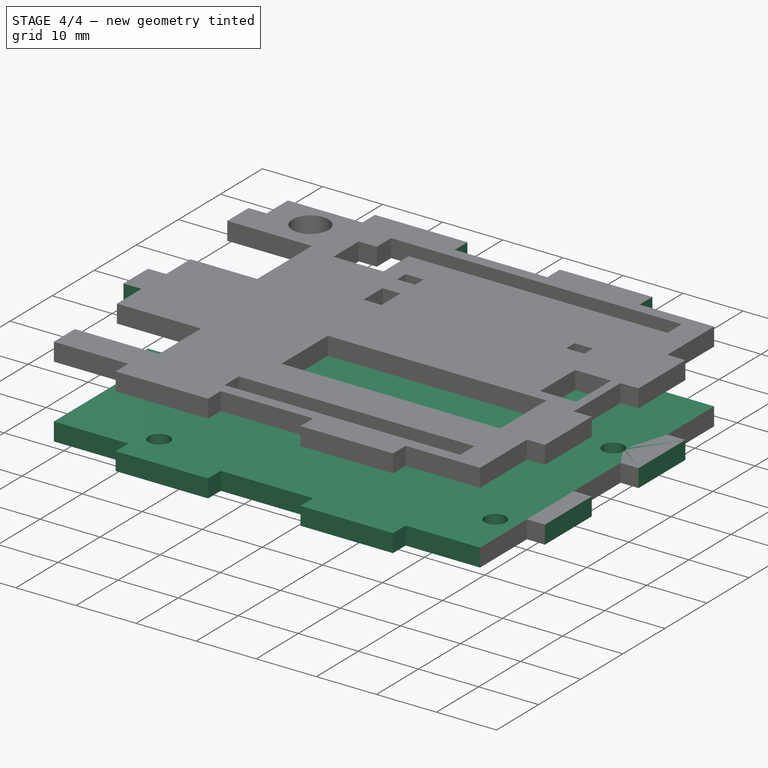
[diagram: stage 4 of 4 — iso view after this stage's code; geometry added in this stage tinted green]
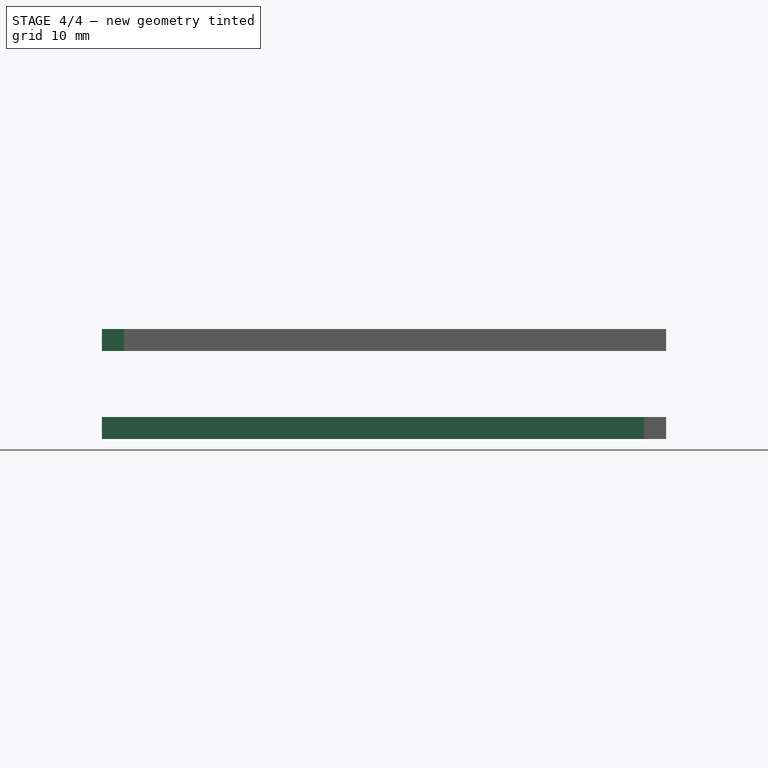
[diagram: stage 4 of 4 — front view after this stage's code; geometry added in this stage tinted green]
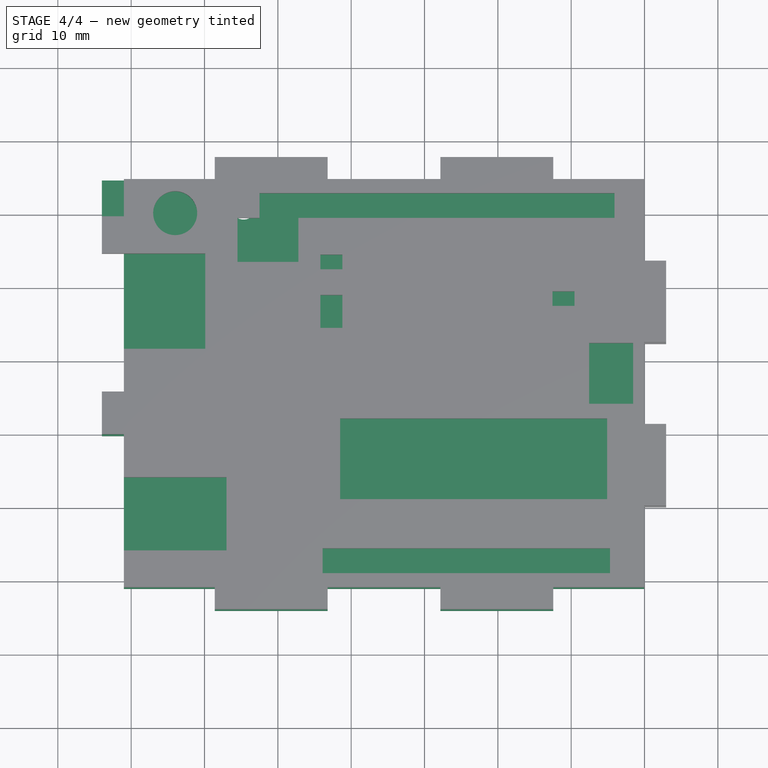
[diagram: stage 4 of 4 — top view after this stage's code; geometry added in this stage tinted green]
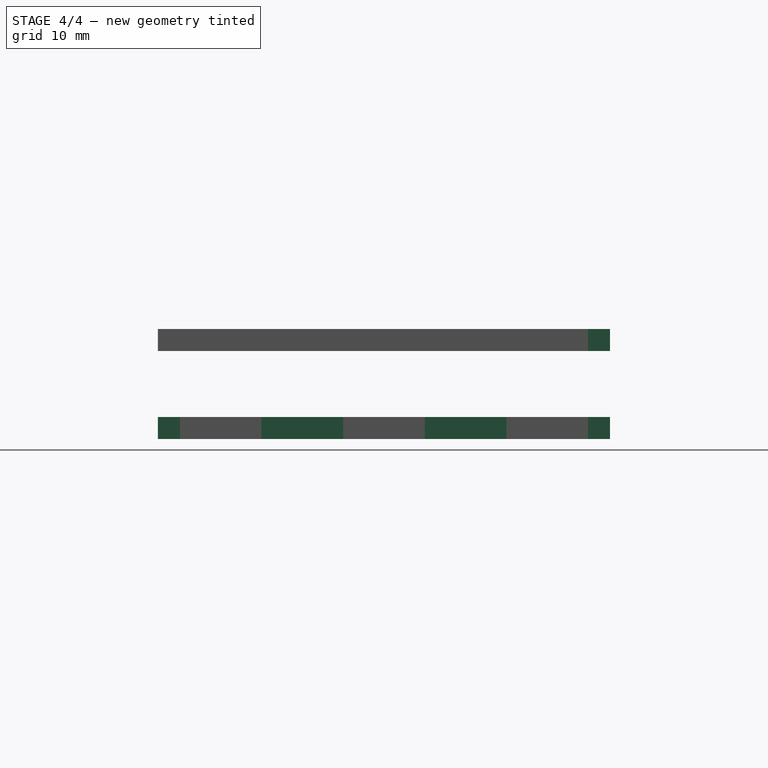
[diagram: stage 4 of 4 — right view after this stage's code; geometry added in this stage tinted green]
FEATURE [Part::Cut] Cut001
  Base = -> Cut
  Refine = true
  Tool = -> mirror
FEATURE [Part::Cut] Cut004  label="TOPO001"
  Base = -> Cut001
  Refine = true
  Tool = -> Extrude003
FEATURE [Part::Cut] Cut006
  Base = -> Cut004
  Refine = true
  Tool = -> Extrude004
FEATURE [Part::Cut] Cut007
  Base = -> Cut005
  Refine = true
  Tool = -> Extrude004
FEATURE [Sketcher::SketchObject] Sketch005
  MapMode = 5
  Placement = pos=(0,0,15) rot=(0,0,1;0rad)
  Support = -> [Cut006]
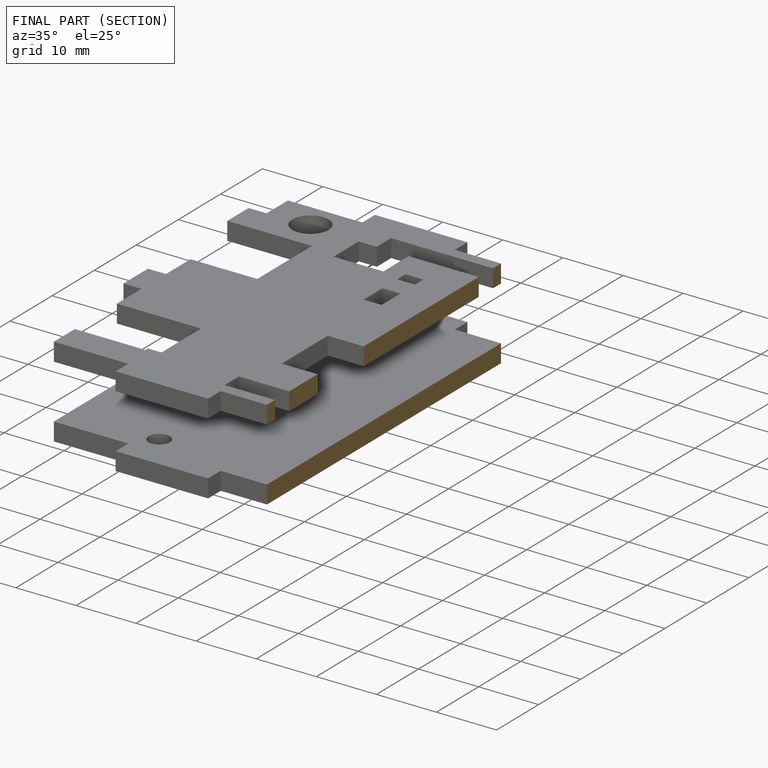
[diagram: finished part — half-section view (interior)]
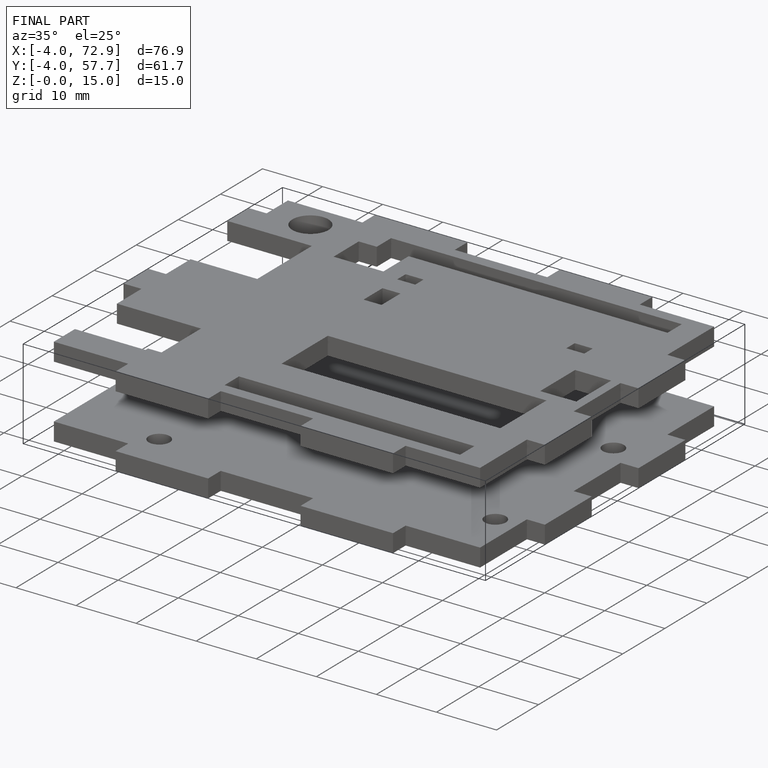
[diagram: finished part — iso view with bounding-box wireframe]
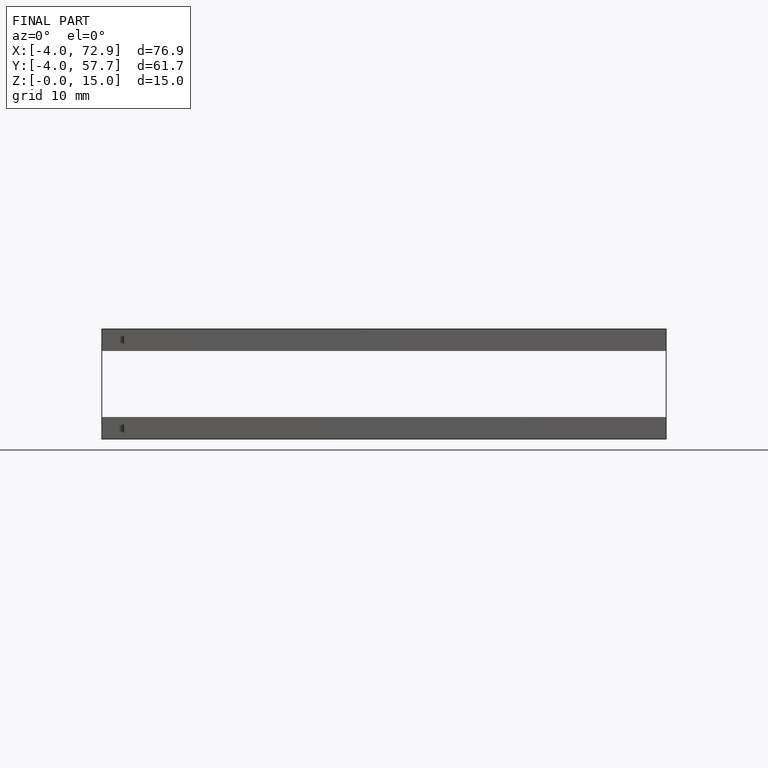
[diagram: finished part — front view with bounding-box wireframe]
